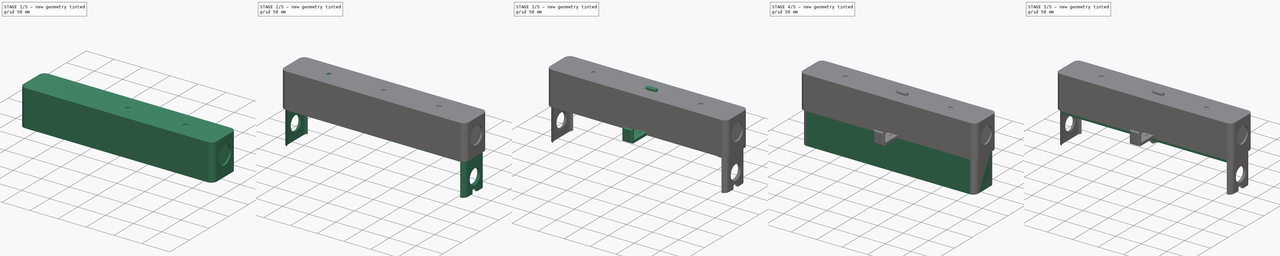
[diagram: build sequence overview — one tinted view per stage of 5, left to right]
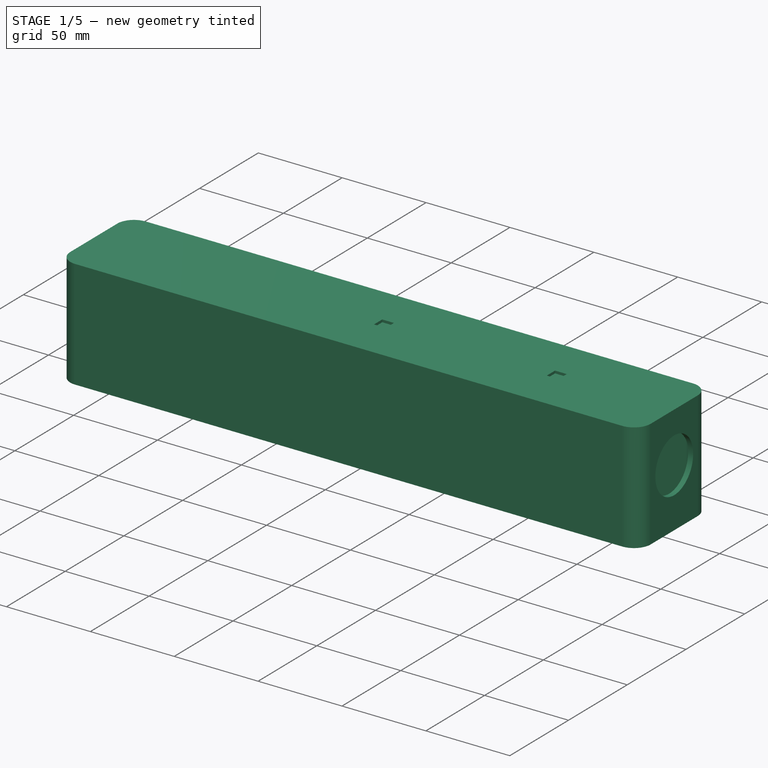
[diagram: stage 1 of 5 — iso view after this stage's code; geometry added in this stage tinted green]
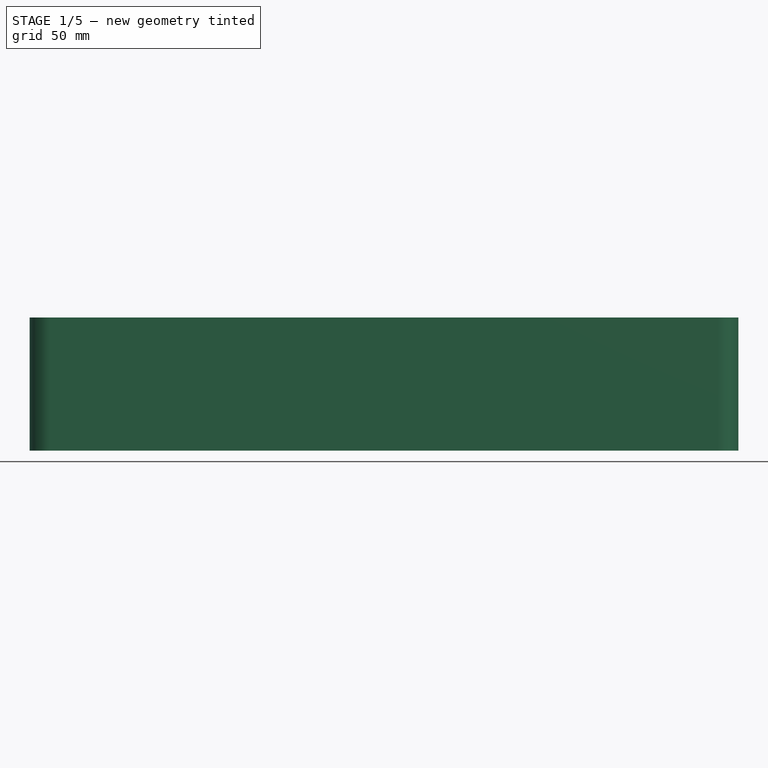
[diagram: stage 1 of 5 — front view after this stage's code; geometry added in this stage tinted green]
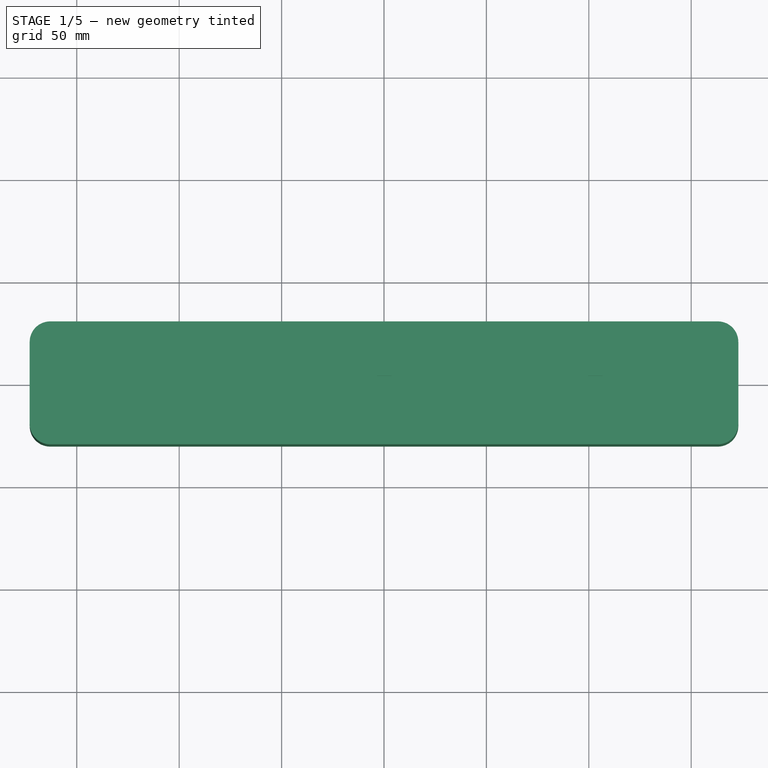
[diagram: stage 1 of 5 — top view after this stage's code; geometry added in this stage tinted green]
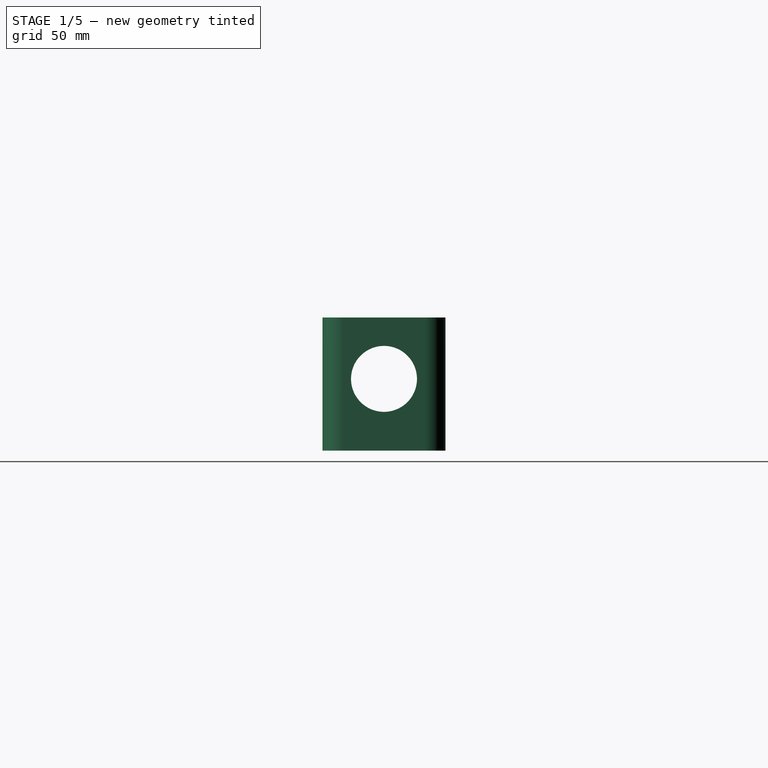
[diagram: stage 1 of 5 — right view after this stage's code; geometry added in this stage tinted green]
FCSTD DOCUMENT  (FreeCAD 1.0R39319 (Git))
Label: Folienabroller
License: All rights reserved
LicenseURL: http://en.wikipedia.org/wiki/All_rights_reserved
objects: Sketcher::SketchObject×34, PartDesign::Pad×18, PartDesign::Pocket×11, PartDesign::Body×8, PartDesign::Chamfer×8, PartDesign::LinearPattern×6, PartDesign::Fillet×6, PartDesign::Hole×3, Spreadsheet::Sheet×2, Part::FeaturePython×1
note: 227 computed .brp shape members not serialized (recipe doc carries the construction recipe); baked Part::Feature solids carry a one-line shape summary decoded from their .brp

FEATURE [Sketcher::SketchObject] Sketch016  label="Halter Deckel"
  ArcFitTolerance = 1e-06
  AttachmentSupport = -> [YZ_Plane002]
  FullyConstrained = true
  MakeInternals = false
  MapMode = 5
  Placement = pos=(0,0,0) rot=(0.57735,0.57735,0.57735;2.0944rad)
  expr: Constraints[10] = Spreadsheet.BODY_Y / 2 - 2
  expr: Constraints[11] = -2.2
  sketch-geometry (4):
    g0: LineSegment StartX=-28 StartY=7.2 StartZ=0 EndX=-28 EndY=2.2 EndZ=0
    g1: LineSegment StartX=-28 StartY=2.2 StartZ=0 EndX=-25 EndY=2.2 EndZ=0
    g2: LineSegment StartX=-25 StartY=2.2 StartZ=0 EndX=-25 EndY=7.2 EndZ=0
    g3: LineSegment StartX=-25 StartY=7.2 StartZ=0 EndX=-28 EndY=7.2 EndZ=0
  constraints (12):
    c: Coincident(g0,g1)
    c: Coincident(g1,g2)
    c: Coincident(g2,g3)
    c: Coincident(g3,g0)
    c: Vertical(g0)
    c: Vertical(g2)
    c: Horizontal(g1)
    c: Horizontal(g3)
    c: DistanceX(g3,g3) = 3
    c: DistanceY(g2,g2) = 5
    c: DistanceX(g0,g-1) = 28
    c: DistanceY(g1,g-1) = -2.2
FEATURE [Sketcher::SketchObject] Sketch017  label="Verstärkung"
  ArcFitTolerance = 1e-06
  AttachmentSupport = -> [YZ_Plane002]
  FullyConstrained = true
  MakeInternals = false
  MapMode = 5
  Placement = pos=(0,0,0) rot=(0.57735,0.57735,0.57735;2.0944rad)
  expr: .AttachmentOffset.Base.z = 0
  expr: Constraints[13] = Spreadsheet.BODY_Y - 2 - 2
  expr: Constraints[14] = Spreadsheet.BODY_Z - 2
  expr: Constraints[16] = Spreadsheet.BODY_Y - 2 - 2 - 2 - 2
  sketch-geometry (8):
    g0: LineSegment StartX=-28 StartY=63 StartZ=0 EndX=28 EndY=63 EndZ=0
    g1: LineSegment StartX=28 StartY=63 StartZ=0 EndX=28 EndY=10 EndZ=0
    g2: LineSegment StartX=28 StartY=10 StartZ=0 EndX=26 EndY=20 EndZ=0
    g3: LineSegment StartX=26 StartY=20 StartZ=0 EndX=26 EndY=59 EndZ=0
    g4: LineSegment StartX=26 StartY=59 StartZ=0 EndX=-26 EndY=59 EndZ=0
    g5: LineSegment StartX=-26 StartY=59 StartZ=0 EndX=-26 EndY=15 EndZ=0
    g6: LineSegment StartX=-26 StartY=15 StartZ=0 EndX=-28 EndY=2.2 EndZ=0
    g7: LineSegment StartX=-28 StartY=2.2 StartZ=0 EndX=-28 EndY=63 EndZ=0
  constraints (22):
    c: Coincident(g0,g1)
    c: Vertical(g1)
    c: Coincident(g1,g2)
    c: Coincident(g2,g3)
    c: Vertical(g3)
    c: Coincident(g3,g4)
    c: Coincident(g4,g5)
    c: Vertical(g5)
    c: Coincident(g5,g6)
    c: Coincident(g6,g7)
    c: Coincident(g7,g0)
    c: Vertical(g7)
    c: Symmetric(g0,g0,g-2)
    c: DistanceX(g0,g0) = 56
    c: DistanceY(g-1,g0) = 63
    c: Symmetric(g3,g4,g-2)
    c: DistanceX(g4,g4) = 52
    c: DistanceY(g-1,g6) = 2.2
    c: DistanceY(g-1,g1) = 10
    c: DistanceY(g-1,g5) = 15
    c: DistanceY(g-1,g2) = 20
    c: DistanceY(g3,g0) = 4
FEATURE [PartDesign::Pad] Pad006
  Direction = (0,0,1)
  Length = 65
  Length2 = 10
  Profile = -> Sketch007
  ReferenceAxis = -> Sketch007 [N_Axis]
  Refine = true
  Suppressed = false
  Type = 0
  expr: Length = Spreadsheet.BODY_Z
FEATURE [PartDesign::Pocket] Pocket
  BaseFeature = -> Pad006
  Direction = (0,0,-1)
  Length = 63
  Length2 = 5
  Profile = -> Sketch008
  ReferenceAxis = -> Sketch008 [N_Axis]
  Refine = true
  Reversed = true
  Suppressed = false
  Type = 0
  expr: Length = Spreadsheet.BODY_Z - 2
FEATURE [PartDesign::Pocket] Pocket005
  BaseFeature = -> Pocket
  Direction = (1,-1e-16,1e-16)
  Length = 5
  Length2 = 5
  Profile = -> Sketch009
  ReferenceAxis = -> Sketch009 [N_Axis]
  Refine = true
  Suppressed = false
  Type = 1
FEATURE [PartDesign::Pad] Pad009
  BaseFeature = -> Pocket005
  Direction = (1,0,0)
  Length = 20
  Length2 = 10
  Midplane = true
  Profile = -> Sketch017
  ReferenceAxis = -> Sketch017 [N_Axis]
  Refine = true
  Suppressed = false
  Type = 0
FEATURE [PartDesign::LinearPattern] LinearPattern
  BaseFeature = -> Pad009
  Direction = -> X_Axis002
  Length = 103
  Mode = 0
  Occurrences = 2
  Offset = 173
  Originals = -> [Pad009]
  Refine = true
  Reversed = true
  Suppressed = false
  TransformMode = 0
  expr: Length = Spreadsheet.BODY_X / 2 - 70
  expr: Offset = Spreadsheet.BODY_X / 2
FEATURE [PartDesign::LinearPattern] LinearPattern001
  BaseFeature = -> LinearPattern
  Direction = -> X_Axis002
  Length = 103
  Mode = 0
  Occurrences = 2
  Offset = 103
  Originals = -> [Pad009]
  Refine = true
  Suppressed = false
  TransformMode = 0
  expr: Length = Spreadsheet.BODY_X / 2 - 70
FEATURE [PartDesign::Pad] Pad010
  BaseFeature = -> LinearPattern001
  Direction = (1,0,0)
  Length = 150
  Length2 = 10
  Midplane = true
  Profile = -> Sketch016
  ReferenceAxis = -> Sketch016 [N_Axis]
  Refine = true
  Suppressed = false
  Type = 0
FEATURE [Sketcher::SketchObject] Sketch019
  ArcFitTolerance = 1e-06
  AttachmentSupport = -> [YZ_Plane002]
  FullyConstrained = true
  MakeInternals = false
  MapMode = 5
  Placement = pos=(0,0,0) rot=(0.57735,0.57735,0.57735;2.0944rad)
FEATURE [Sketcher::SketchObject] Sketch020  label="Nut Deckel"
  ArcFitTolerance = 1e-06
  AttachmentSupport = -> [Pad010]
  FullyConstrained = true
  MakeInternals = false
  MapMode = 5
  Placement = pos=(-173,0,0) rot=(0.57735,-0.57735,-0.57735;2.0944rad)
  expr: Constraints[12] = Spreadsheet.BODY_Z - 2 - 5 / 2
  sketch-geometry (5):
    g0: LineSegment StartX=-5 StartY=63 StartZ=0 EndX=-5 EndY=58 EndZ=0
    g1: LineSegment StartX=-5 StartY=58 StartZ=0 EndX=5 EndY=58 EndZ=0
    g2: LineSegment StartX=5 StartY=58 StartZ=0 EndX=5 EndY=63 EndZ=0
    g3: LineSegment StartX=5 StartY=63 StartZ=0 EndX=-5 EndY=63 EndZ=0
    g4: GeomPoint [constr] X=0 Y=60.5 Z=0
  constraints (13):
    c: Coincident(g0,g1)
    c: Coincident(g1,g2)
    c: Coincident(g2,g3)
    c: Coincident(g3,g0)
    c: Vertical(g0)
    c: Vertical(g2)
    c: Horizontal(g1)
    c: Horizontal(g3)
    c: Symmetric(g2,g0,g4)
    c: PointOnObject(g4,g-2)
    c: DistanceX(g3,g3) = 10
    c: DistanceY(g2,g2) = 5
    c: DistanceY(g-1,g4) = 60.5
FEATURE [PartDesign::Pad] Pad011
  BaseFeature = -> Pad010
  Direction = (-1,0,0)
  Length = 6
  Length2 = 10
  Profile = -> Sketch020
  ReferenceAxis = -> Sketch020 [N_Axis]
  Refine = true
  Reversed = true
  Suppressed = false
  Type = 0
FEATURE [PartDesign::Chamfer] Chamfer001
  Angle = 45
  Base = -> Pad011 [Edge100,Edge98,Edge111,Edge113,Edge136,Edge134,Edge141,Edge143,Edge130,Edge128,Edge106,Edge108]
  BaseFeature = -> Pad011
  ChamferType = 0
  FlipDirection = false
  Refine = true
  Size = 1.9
  Size2 = 1
  SupportTransform = false
  Suppressed = false
  UseAllEdges = false
FEATURE [Sketcher::SketchObject] Sketch021  label="Nut Halter"
  ArcFitTolerance = 1e-06
  AttachmentOffset = pos=(0,0,65) rot=(0,0,1;0rad)
  AttachmentSupport = -> [XY_Plane002]
  FullyConstrained = true
  MakeInternals = false
  MapMode = 5
  Placement = pos=(0,0,65) rot=(0,0,1;0rad)
  expr: .AttachmentOffset.Base.z = Spreadsheet.BODY_Z
  sketch-geometry (5):
    g0: LineSegment StartX=-3.5 StartY=3.5 StartZ=0 EndX=-3.5 EndY=-3.5 EndZ=0
    g1: LineSegment StartX=-3.5 StartY=-3.5 StartZ=0 EndX=3.5 EndY=-3.5 EndZ=0
    g2: LineSegment StartX=3.5 StartY=-3.5 StartZ=0 EndX=3.5 EndY=3.5 EndZ=0
    g3: LineSegment StartX=3.5 StartY=3.5 StartZ=0 EndX=-3.5 EndY=3.5 EndZ=0
    g4: GeomPoint [constr] X=0 Y=0 Z=0
  constraints (12):
    c: Coincident(g0,g1)
    c: Coincident(g1,g2)
    c: Coincident(g2,g3)
    c: Coincident(g3,g0)
    c: Vertical(g0)
    c: Vertical(g2)
    c: Horizontal(g1)
    c: Horizontal(g3)
    c: Symmetric(g2,g0,g4)
    c: Coincident(g4,g-1)
    c: DistanceX(g3,g3) = 7
    c: DistanceY(g2,g2) = 7
FEATURE [PartDesign::Pocket] Pocket007
  BaseFeature = -> Chamfer001
  Direction = (0,0,-1)
  Length = 1.5
  Length2 = 5
  Profile = -> Sketch021
  ReferenceAxis = -> Sketch021 [N_Axis]
  Refine = true
  Suppressed = false
  Type = 0
FEATURE [PartDesign::LinearPattern] LinearPattern002
  BaseFeature = -> Pocket007
  Direction = -> Sketch021 [H_Axis]
  Length = 103
  Mode = 0
  Occurrences = 2
  Offset = 103
  Originals = -> [Pocket007]
  Refine = true
  Suppressed = false
  TransformMode = 0
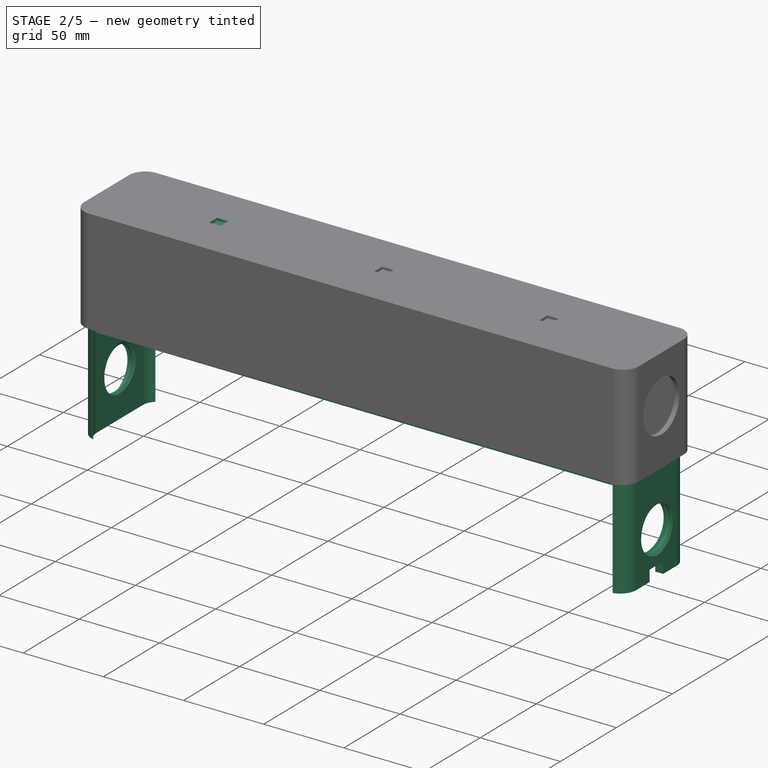
[diagram: stage 2 of 5 — iso view after this stage's code; geometry added in this stage tinted green]
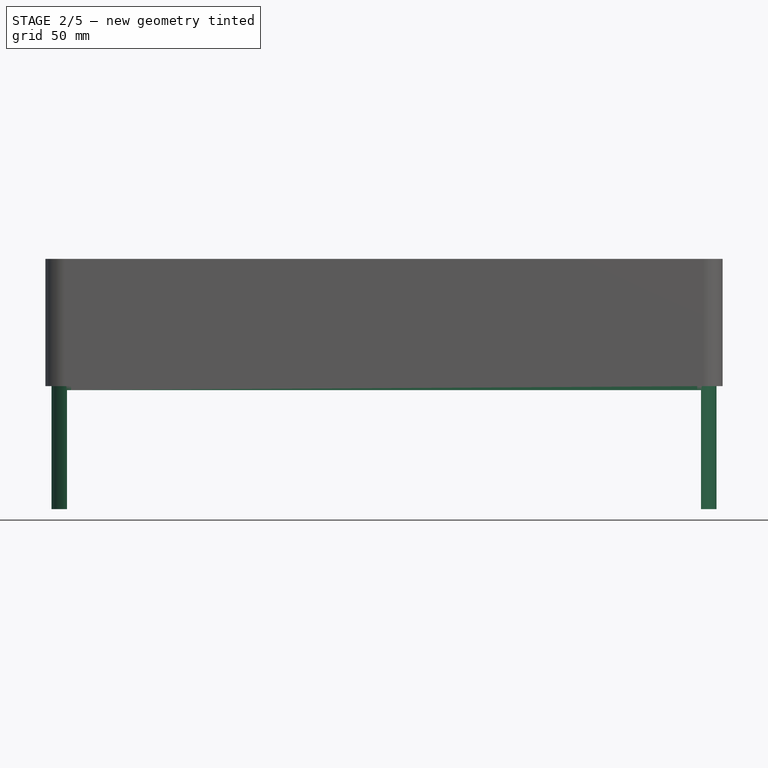
[diagram: stage 2 of 5 — front view after this stage's code; geometry added in this stage tinted green]
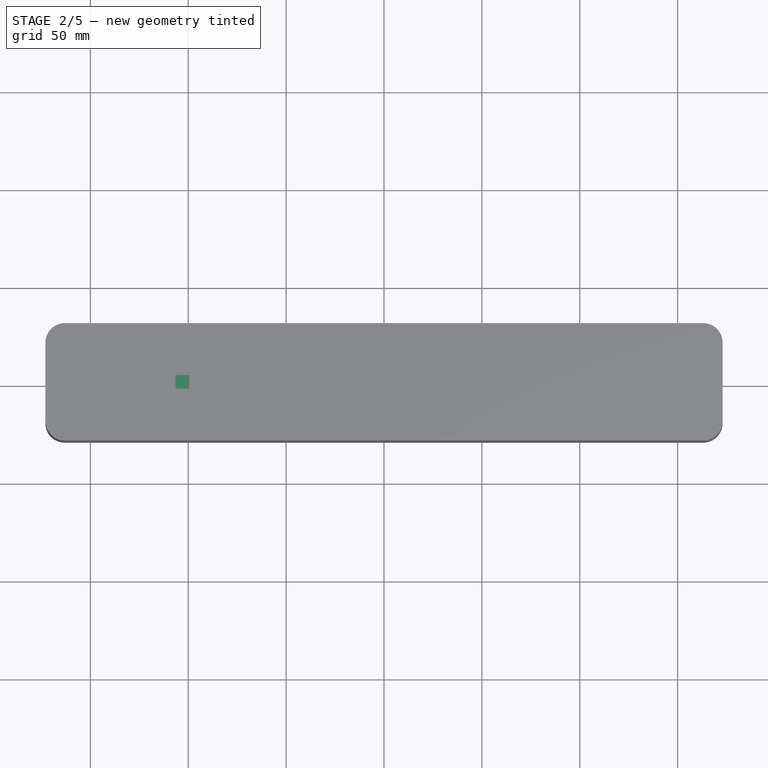
[diagram: stage 2 of 5 — top view after this stage's code; geometry added in this stage tinted green]
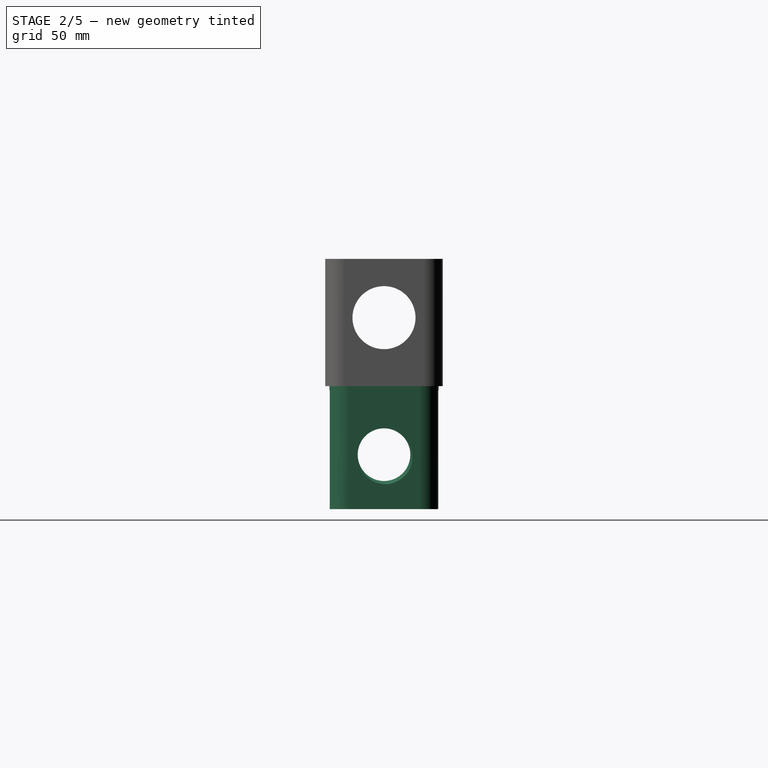
[diagram: stage 2 of 5 — right view after this stage's code; geometry added in this stage tinted green]
FEATURE [PartDesign::LinearPattern] LinearPattern003
  BaseFeature = -> LinearPattern002
  Direction = -> Sketch021 [H_Axis]
  Length = 103
  Mode = 1
  Occurrences = 2
  Offset = 103
  Originals = -> [Pocket007]
  Refine = true
  Reversed = true
  Suppressed = false
  TransformMode = 0
FEATURE [PartDesign::Chamfer] Chamfer003
  Angle = 45
  Base = -> LinearPattern003 [Edge142,Edge139,Edge145]
  BaseFeature = -> LinearPattern003
  ChamferType = 0
  FlipDirection = false
  Refine = true
  Size = 2.2
  Size2 = 1
  SupportTransform = false
  Suppressed = false
  UseAllEdges = false
FEATURE [PartDesign::Body] Body006  label="Alufoliecutter"
  AllowCompound = false
  Group = -> [Sketch026,Pad015,Sketch027,Pad016,LinearPattern004,LinearPattern005]
  Origin = -> Origin006
  Tip = -> LinearPattern005
FEATURE [Sketcher::SketchObject] Sketch028
  ArcFitTolerance = 1e-06
  AttachmentSupport = -> [XY_Plane007]
  FullyConstrained = true
  MakeInternals = false
  MapMode = 5
  expr: Constraints[24] = Spreadsheet001.BODY_ROUND
  expr: Constraints[25] = Spreadsheet001.BODY_ROUND
  expr: Constraints[26] = Spreadsheet001.BODY_ROUND
  expr: Constraints[27] = Spreadsheet001.BODY_ROUND
  expr: Constraints[6] = Spreadsheet001.BODY_X - 3 - 3 - 0.1 - 0.1
  expr: Constraints[7] = Spreadsheet001.BODY_Y - 2 - 2 - 0.1 - 0.1
  sketch-geometry (13):
    g0: LineSegment StartX=-169.9 StartY=17.9 StartZ=0 EndX=-169.9 EndY=-17.9 EndZ=0
    g1: LineSegment StartX=-159.9 StartY=-27.9 StartZ=0 EndX=159.9 EndY=-27.9 EndZ=0
    g2: LineSegment StartX=169.9 StartY=-17.9 StartZ=0 EndX=169.9 EndY=17.9 EndZ=0
    g3: LineSegment StartX=159.9 StartY=27.9 StartZ=0 EndX=-159.9 EndY=27.9 EndZ=0
    g4: GeomPoint [constr] X=0 Y=0 Z=0
    g5: ArcOfCircle CenterX=159.9 CenterY=17.9 CenterZ=0 NormalX=0 NormalY=0 NormalZ=1 AngleXU=0 Radius=10 StartAngle=2.8629e-12 EndAngle=1.5708
    g6: GeomPoint [constr] X=169.9 Y=27.9 Z=0
    g7: ArcOfCircle CenterX=159.9 CenterY=-17.9 CenterZ=0 NormalX=0 NormalY=0 NormalZ=1 AngleXU=0 Radius=10 StartAngle=4.71239 EndAngle=6.28319
    g8: GeomPoint [constr] X=169.9 Y=-27.9 Z=0
    g9: ArcOfCircle CenterX=-159.9 CenterY=-17.9 CenterZ=0 NormalX=0 NormalY=0 NormalZ=1 AngleXU=0 Radius=10 StartAngle=3.14159 EndAngle=4.71239
    g10: GeomPoint [constr] X=-169.9 Y=-27.9 Z=0
    g11: ArcOfCircle CenterX=-159.9 CenterY=17.9 CenterZ=0 NormalX=0 NormalY=0 NormalZ=1 AngleXU=0 Radius=10 StartAngle=1.5708 EndAngle=3.14159
    g12: GeomPoint [constr] X=-169.9 Y=27.9 Z=0
  constraints (28):
    c: Vertical(g0)
    c: Vertical(g2)
    c: Horizontal(g1)
    c: Horizontal(g3)
    c: Symmetric(g8,g12,g4)
    c: Coincident(g4,g-1)
    c: DistanceX(g12,g6) = 339.8
    c: DistanceY(g8,g6) = 55.8
    c: PointOnObject(g6,g2)
    c: PointOnObject(g6,g3)
    c: Tangent(g2,g5) = -1.5708
    c: Tangent(g3,g5) = -1.5708
    c: PointOnObject(g8,g1)
    c: PointOnObject(g8,g2)
    c: Tangent(g1,g7) = -1.5708
    c: Tangent(g2,g7) = -1.5708
    c: PointOnObject(g10,g0)
    c: PointOnObject(g10,g1)
    c: Tangent(g0,g9) = -1.5708
    c: Tangent(g1,g9) = -1.5708
    c: PointOnObject(g12,g0)
    c: PointOnObject(g12,g3)
    c: Tangent(g0,g11) = -1.5708
    c: Tangent(g3,g11) = -1.5708
    c: DistanceX(g0,g11) = 10
    c: DistanceX(g5,g2) = 10
    c: DistanceX(g7,g2) = 10
    c: DistanceX(g0,g9) = 10
FEATURE [PartDesign::Pad] Pad017
  Direction = (0,0,1)
  Length = 62.8
  Length2 = 10
  Profile = -> Sketch028
  ReferenceAxis = -> Sketch028 [N_Axis]
  Refine = true
  Reversed = true
  Suppressed = false
  Type = 0
  expr: Length = Spreadsheet001.BODY_Z - 2 - 0.2
FEATURE [Sketcher::SketchObject] Sketch030  label="Auschnitt deckel unten001"
  ArcFitTolerance = 1e-06
  AttachmentOffset = pos=(0,0,-2) rot=(0,0,1;0rad)
  AttachmentSupport = -> [XY_Plane007]
  FullyConstrained = true
  MakeInternals = false
  MapMode = 5
  Placement = pos=(0,0,-2) rot=(0,0,1;0rad)
  expr: Constraints[24] = Spreadsheet001.BODY_ROUND
  expr: Constraints[25] = Spreadsheet001.BODY_ROUND
  expr: Constraints[26] = Spreadsheet001.BODY_ROUND
  expr: Constraints[27] = Spreadsheet001.BODY_ROUND
  expr: Constraints[7] = Spreadsheet001.BODY_Z - 2 - 2
  sketch-geometry (13):
    g0: LineSegment StartX=-165 StartY=20.5 StartZ=0 EndX=-165 EndY=-20.5 EndZ=0
    g1: LineSegment StartX=-155 StartY=-30.5 StartZ=0 EndX=155 EndY=-30.5 EndZ=0
    g2: LineSegment StartX=165 StartY=-20.5 StartZ=0 EndX=165 EndY=20.5 EndZ=0
    g3: LineSegment StartX=155 StartY=30.5 StartZ=0 EndX=-155 EndY=30.5 EndZ=0
    g4: GeomPoint [constr] X=0 Y=0 Z=0
    g5: ArcOfCircle CenterX=155 CenterY=20.5 CenterZ=0 NormalX=0 NormalY=0 NormalZ=1 AngleXU=0 Radius=10 StartAngle=2.8411e-12 EndAngle=1.5708
    g6: GeomPoint [constr] X=165 Y=30.5 Z=0
    g7: ArcOfCircle CenterX=155 CenterY=-20.5 CenterZ=0 NormalX=0 NormalY=0 NormalZ=1 AngleXU=0 Radius=10 StartAngle=4.71239 EndAngle=6.28319
    g8: GeomPoint [constr] X=165 Y=-30.5 Z=0
    g9: ArcOfCircle CenterX=-155 CenterY=-20.5 CenterZ=0 NormalX=0 NormalY=0 NormalZ=1 AngleXU=0 Radius=10 StartAngle=3.14159 EndAngle=4.71239
    g10: GeomPoint [constr] X=-165 Y=-30.5 Z=0
    g11: ArcOfCircle CenterX=-155 CenterY=20.5 CenterZ=0 NormalX=0 NormalY=0 NormalZ=1 AngleXU=0 Radius=10 StartAngle=1.5708 EndAngle=3.14159
    g12: GeomPoint [constr] X=-165 Y=30.5 Z=0
  constraints (28):
    c: Vertical(g0)
    c: Vertical(g2)
    c: Horizontal(g1)
    c: Horizontal(g3)
    c: Symmetric(g8,g12,g4)
    c: Coincident(g4,g-1)
    c: DistanceX(g12,g6) = 330
    c: DistanceY(g8,g6) = 61
    c: PointOnObject(g6,g2)
    c: PointOnObject(g6,g3)
    c: Tangent(g2,g5) = -1.5708
    c: Tangent(g3,g5) = -1.5708
    c: PointOnObject(g8,g1)
    c: PointOnObject(g8,g2)
    c: Tangent(g1,g7) = -1.5708
    c: Tangent(g2,g7) = -1.5708
    c: PointOnObject(g10,g0)
    c: PointOnObject(g10,g1)
    c: Tangent(g0,g9) = -1.5708
    c: Tangent(g1,g9) = -1.5708
    c: PointOnObject(g12,g0)
    c: PointOnObject(g12,g3)
    c: Tangent(g0,g11) = -1.5708
    c: Tangent(g3,g11) = -1.5708
    c: DistanceX(g0,g11) = 10
    c: DistanceX(g0,g9) = 10
    c: DistanceX(g7,g2) = 10
    c: DistanceX(g5,g2) = 10
FEATURE [PartDesign::Pocket] Pocket009
  BaseFeature = -> Pad017
  Direction = (0,0,-1)
  Length = 5
  Length2 = 5
  Profile = -> Sketch030
  ReferenceAxis = -> Sketch030 [N_Axis]
  Refine = true
  Suppressed = false
  Type = 1
FEATURE [Sketcher::SketchObject] Sketch031
  ArcFitTolerance = 1e-06
  AttachmentSupport = -> [Pocket009]
  FullyConstrained = true
  MakeInternals = false
  MapMode = 5
  Placement = pos=(-169.9,0,0) rot=(0.57735,-0.57735,-0.57735;2.0944rad)
  expr: Constraints[2] = Spreadsheet001.BODY_Z - Spreadsheet001.HOLE_BODY_HANDRAD
  sketch-geometry (1):
    g0: Circle CenterX=0 CenterY=-35 CenterZ=0 NormalX=0 NormalY=0 NormalZ=1 AngleXU=0 Radius=15
  constraints (3):
    c: PointOnObject(g0,g-2)
    c: Diameter(g0) = 30
    c: DistanceY(g0,g-1) = 35
FEATURE [PartDesign::Hole] Hole002
  BaseFeature = -> Pocket009
  CustomThreadClearance = 0.4
  Depth = 356
  DepthType = 0
  Diameter = 26.9
  DrillForDepth = false
  DrillPoint = 1
  DrillPointAngle = 118
  HoleCutCountersinkAngle = 90
  HoleCutCustomValues = false
  HoleCutDepth = 0
  HoleCutDiameter = 0
  HoleCutType = 0
  ModelThread = true
  Profile = -> Sketch031
  Refine = true
  Suppressed = false
  Tapered = false
  TaperedAngle = 90
  ThreadClass = 0
  ThreadDepth = 356
  ThreadDepthType = 0
  ThreadDirection = 0
  ThreadFit = 0
  ThreadSize = 28
  ThreadType = 1
  Threaded = true
  UseCustomThreadClearance = true
  expr: Depth = Spreadsheet001.BODY_X + 10
FEATURE [Sketcher::SketchObject] Sketch033  label="Ausschnitt Folie nach oben001"
  ArcFitTolerance = 1e-06
  AttachmentSupport = -> [XY_Plane007]
  FullyConstrained = true
  MakeInternals = false
  MapMode = 5
  expr: Constraints[10] = Spreadsheet001.BODY_Y / 2
  sketch-geometry (5):
    g0: LineSegment StartX=-155 StartY=34 StartZ=0 EndX=-155 EndY=26 EndZ=0
    g1: LineSegment StartX=-155 StartY=26 StartZ=0 EndX=155 EndY=26 EndZ=0
    g2: LineSegment StartX=155 StartY=26 StartZ=0 EndX=155 EndY=34 EndZ=0
    g3: LineSegment StartX=155 StartY=34 StartZ=0 EndX=-155 EndY=34 EndZ=0
    g4: GeomPoint [constr] X=0 Y=30 Z=0
  constraints (13):
    c: Coincident(g0,g1)
    c: Coincident(g1,g2)
    c: Coincident(g2,g3)
    c: Coincident(g3,g0)
    c: Vertical(g0)
    c: Vertical(g2)
    c: Horizontal(g1)
    c: Horizontal(g3)
    c: Symmetric(g2,g0,g4)
    c: PointOnObject(g4,g-2)
    c: DistanceY(g-1,g4) = 30
    c: DistanceX(g3,g3) = 310
    c: DistanceY(g0,g0) = 8
FEATURE [PartDesign::Pocket] Pocket010
  BaseFeature = -> Hole002
  Direction = (0,0,-1)
  Length = 5
  Length2 = 5
  Profile = -> Sketch033
  ReferenceAxis = -> Sketch033 [N_Axis]
  Refine = true
  Suppressed = false
  Type = 1
FEATURE [Sketcher::SketchObject] Sketch034  label="Nut001"
  ArcFitTolerance = 1e-06
  AttachmentOffset = pos=(0,0,173) rot=(0,0,1;0rad)
  AttachmentSupport = -> [YZ_Plane007]
  FullyConstrained = true
  MakeInternals = false
  MapMode = 5
  Placement = pos=(173,0,0) rot=(0.57735,0.57735,0.57735;2.0944rad)
  expr: .AttachmentOffset.Base.z = Spreadsheet001.BODY_X / 2
  expr: Constraints[12] = Spreadsheet001.BODY_Z - 0.2 - 7 / 2 - 2
  sketch-geometry (5):
    g0: LineSegment StartX=-6 StartY=-55.8 StartZ=0 EndX=-6 EndY=-62.8 EndZ=0
    g1: LineSegment StartX=-6 StartY=-62.8 StartZ=0 EndX=6 EndY=-62.8 EndZ=0
    g2: LineSegment StartX=6 StartY=-62.8 StartZ=0 EndX=6 EndY=-55.8 EndZ=0
    g3: LineSegment StartX=6 StartY=-55.8 StartZ=0 EndX=-6 EndY=-55.8 EndZ=0
    g4: GeomPoint [constr] X=0 Y=-59.3 Z=0
  constraints (13):
    c: Coincident(g0,g1)
    c: Coincident(g1,g2)
    c: Coincident(g2,g3)
    c: Coincident(g3,g0)
    c: Vertical(g0)
    c: Vertical(g2)
    c: Horizontal(g1)
    c: Horizontal(g3)
    c: Symmetric(g2,g0,g4)
    c: PointOnObject(g4,g-2)
    c: DistanceX(g3,g3) = 12
    c: DistanceY(g2,g2) = 7
    c: DistanceY(g4,g-1) = 59.3
FEATURE [PartDesign::Pocket] Pocket011
  BaseFeature = -> Pocket010
  Direction = (-1,0,0)
  Length = 8
  Length2 = 5
  Profile = -> Sketch034
  ReferenceAxis = -> Sketch034 [N_Axis]
  Refine = true
  Suppressed = false
  Type = 0
FEATURE [PartDesign::Fillet] Fillet004
  Base = -> Pocket011 [Edge17,Edge46]
  BaseFeature = -> Pocket011
  Radius = 0.99
  Refine = true
  SupportTransform = false
  Suppressed = false
  UseAllEdges = false
FEATURE [PartDesign::Fillet] Fillet005
  Base = -> Fillet004 [Edge19,Edge2,Edge28,Edge7]
  BaseFeature = -> Fillet004
  Radius = 0.99
  Refine = true
  SupportTransform = false
  Suppressed = false
  UseAllEdges = false
FEATURE [PartDesign::Body] Body007  label="Deckel Alufolie"
  AllowCompound = false
  Group = -> [Sketch028,Pad017,Sketch030,Pocket009,Sketch031,Hole002,Sketch033,Pocket010,Sketch034,Pocket011,Fillet004,Fillet005,Sketch036,Pocket012]
  Origin = -> Origin007
  Tip = -> Pocket012
FEATURE [PartDesign::Chamfer] Chamfer008
  Angle = 45
  Base = -> Chamfer003 [Edge89,Edge102,Edge52,Edge41,Edge112,Edge125]
  BaseFeature = -> Chamfer003
  ChamferType = 0
  FlipDirection = false
  Refine = true
  Size = 3.9
  Size2 = 1
  SupportTransform = false
  Suppressed = false
  UseAllEdges = false
FEATURE [PartDesign::Body] Body002  label="Gehäuse"
  AllowCompound = false
  Group = -> [Sketch007,Pad006,Sketch008,Sketch009,Sketch016,Sketch017,Pocket,Pocket005,Pad009,LinearPattern,LinearPattern001,Pad010,Sketch019,Sketch020,Pad011,Chamfer001,Sketch021,Pocket007,LinearPattern002,LinearPattern003,Chamfer003,Chamfer008]
  Origin = -> Origin002
  Placement = pos=(0,0,-60) rot=(0,0,1;0rad)
  Tip = -> Chamfer008
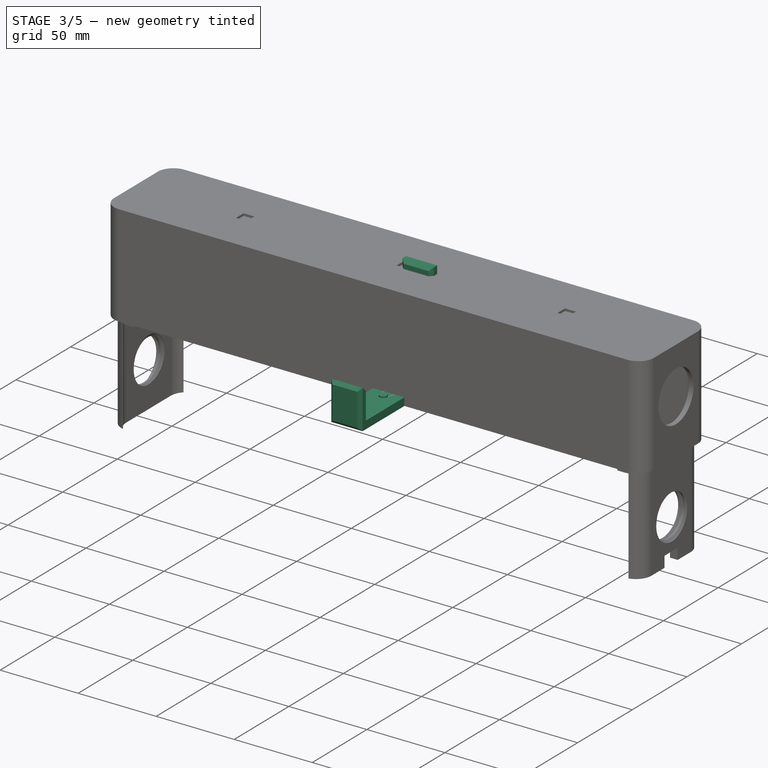
[diagram: stage 3 of 5 — iso view after this stage's code; geometry added in this stage tinted green]
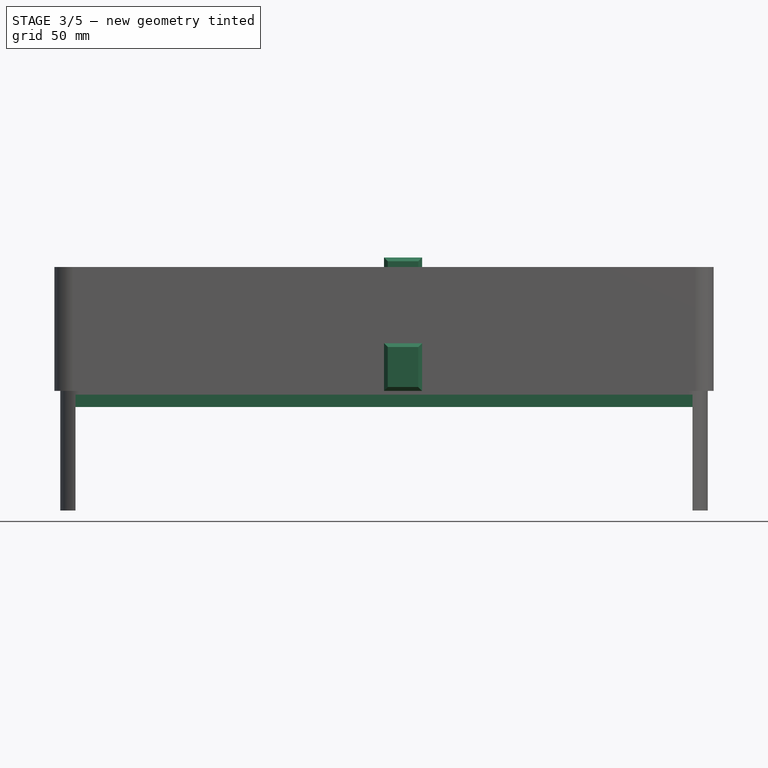
[diagram: stage 3 of 5 — front view after this stage's code; geometry added in this stage tinted green]
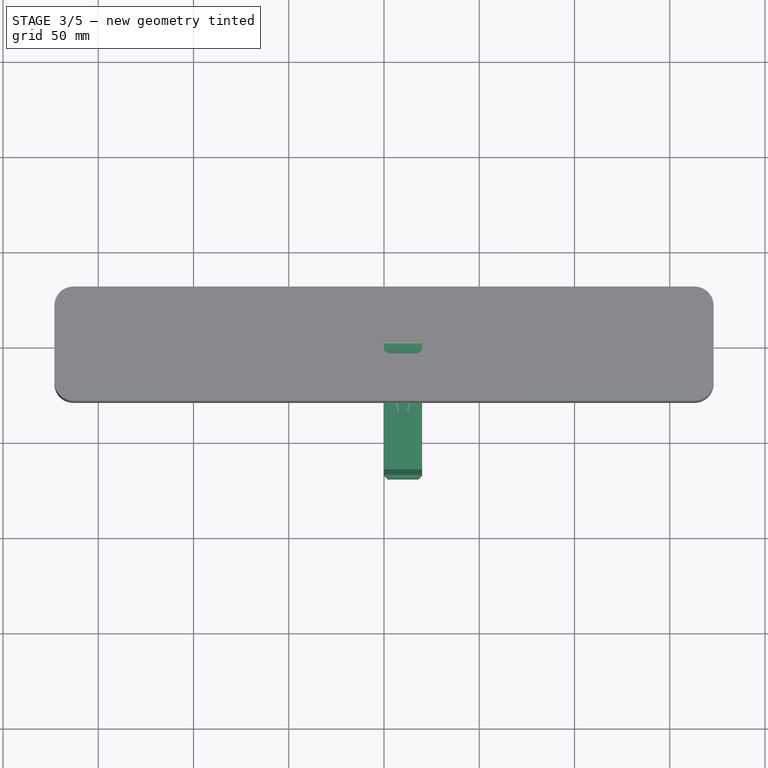
[diagram: stage 3 of 5 — top view after this stage's code; geometry added in this stage tinted green]
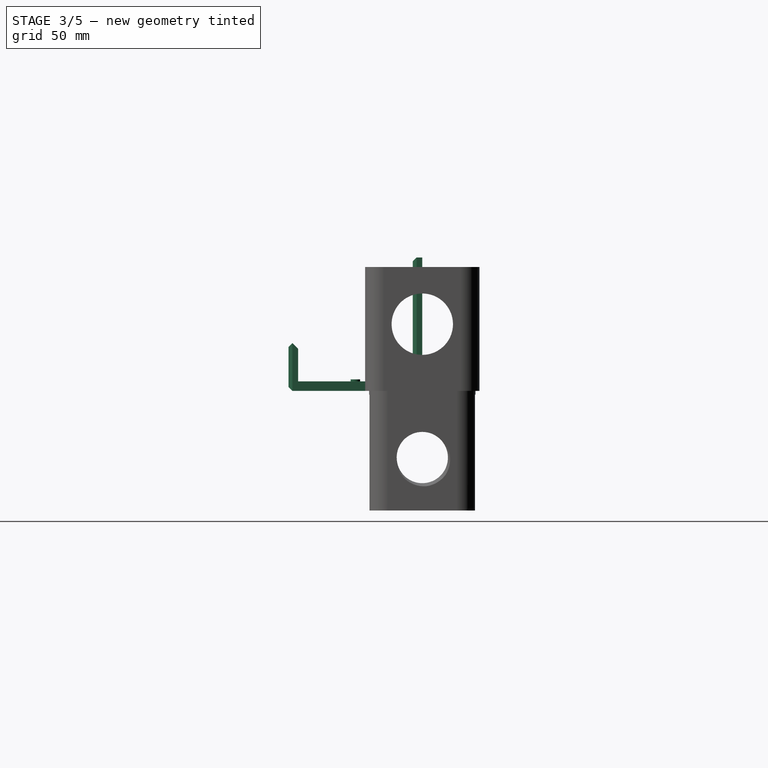
[diagram: stage 3 of 5 — right view after this stage's code; geometry added in this stage tinted green]
FEATURE [PartDesign::Body] Body001  label="Schraube"
  AllowCompound = false
  Group = -> [Sketch002,Pad001,Sketch003,Pad002,Sketch004,Pad003,Sketch005,Pad004,Sketch006,Pad005,Chamfer,Fillet002,Fillet003]
  Origin = -> Origin001
  Tip = -> Fillet003
FEATURE [Sketcher::SketchObject] Sketch023
  ArcFitTolerance = 1e-06
  AttachmentSupport = -> [YZ_Plane004]
  FullyConstrained = true
  MakeInternals = false
  MapMode = 5
  Placement = pos=(0,0,0) rot=(0.57735,0.57735,0.57735;2.0944rad)
  expr: Constraints[17] = Spreadsheet.BODY_Y + 0.2
  expr: Constraints[19] = Spreadsheet.BODY_Z
  sketch-geometry (8):
    g0: LineSegment StartX=0 StartY=0 StartZ=0 EndX=0 EndY=70 EndZ=0
    g1: LineSegment StartX=0 StartY=70 StartZ=0 EndX=-5 EndY=70 EndZ=0
    g2: LineSegment StartX=-5 StartY=70 StartZ=0 EndX=-5 EndY=5 EndZ=0
    g3: LineSegment StartX=-65.2 StartY=5 StartZ=0 EndX=-65.2 EndY=25 EndZ=0
    g4: LineSegment StartX=-65.2 StartY=25 StartZ=0 EndX=-70.2 EndY=25 EndZ=0
    g5: LineSegment StartX=-70.2 StartY=25 StartZ=0 EndX=-70.2 EndY=0 EndZ=0
    g6: LineSegment StartX=-70.2 StartY=0 StartZ=0 EndX=0 EndY=0 EndZ=0
    g7: LineSegment StartX=-65.2 StartY=5 StartZ=0 EndX=-5 EndY=5 EndZ=0
  constraints (23):
    c: Coincident(g-1,g0)
    c: PointOnObject(g0,g-2)
    c: Coincident(g0,g1)
    c: Horizontal(g1)
    c: Coincident(g1,g2)
    c: Vertical(g2)
    c: Vertical(g3)
    c: Coincident(g3,g4)
    c: Horizontal(g4)
    c: Coincident(g4,g5)
    c: PointOnObject(g5,g-1)
    c: Vertical(g5)
    c: Coincident(g5,g6)
    c: Coincident(g6,g0)
    c: Coincident(g3,g7)
    c: Horizontal(g7)
    c: Coincident(g7,g2)
    c: DistanceX(g7,g7) = 60.2
    c: DistanceX(g4,g4) = 5
    c: DistanceY(g2,g2) = 65
    c: DistanceX(g1,g1) = 5
    c: DistanceY(g3,g3) = 20
    c: DistanceY(g0,g2) = 5
FEATURE [PartDesign::Pad] Pad012
  Direction = (1,0,0)
  Length = 20
  Length2 = 10
  Placement = pos=(0,0,0) rot=(1,1,1;2.0944rad)
  Profile = -> Sketch023
  ReferenceAxis = -> Sketch023 [N_Axis]
  Refine = true
  Suppressed = false
  Type = 0
FEATURE [Sketcher::SketchObject] Sketch024
  ArcFitTolerance = 1e-06
  AttachmentSupport = -> [Pad012]
  FullyConstrained = true
  MakeInternals = false
  MapMode = 5
  Placement = pos=(0,1.1e-15,5) rot=(0,0,-1;1.5708rad)
  expr: Constraints[0] = 20 / 2
  expr: Constraints[1] = (Spreadsheet.BODY_Y + 0.2) / 2 + 5
  sketch-geometry (1):
    g0: Circle CenterX=35.1 CenterY=10 CenterZ=0 NormalX=0 NormalY=0 NormalZ=1 AngleXU=0 Radius=2.5
  constraints (3):
    c: DistanceY(g-1,g0) = 10
    c: DistanceX(g-1,g0) = 35.1
    c: Diameter(g0) = 5
FEATURE [PartDesign::Pad] Pad013
  BaseFeature = -> Pad012
  Direction = (0,0,1)
  Length = 1
  Length2 = 10
  Placement = pos=(0,0,0) rot=(1,1,1;2.0944rad)
  Profile = -> Sketch024
  ReferenceAxis = -> Sketch024 [N_Axis]
  Refine = true
  Suppressed = false
  Type = 0
FEATURE [Sketcher::SketchObject] Sketch025
  ArcFitTolerance = 1e-06
  AttachmentSupport = -> [XY_Plane005]
  FullyConstrained = true
  MakeInternals = false
  MapMode = 5
  sketch-geometry (5):
    g0: LineSegment StartX=-25 StartY=16 StartZ=0 EndX=-25 EndY=-16 EndZ=0
    g1: LineSegment StartX=-25 StartY=-16 StartZ=0 EndX=25 EndY=-16 EndZ=0
    g2: LineSegment StartX=25 StartY=-16 StartZ=0 EndX=25 EndY=16 EndZ=0
    g3: LineSegment StartX=25 StartY=16 StartZ=0 EndX=-25 EndY=16 EndZ=0
    g4: GeomPoint [constr] X=0 Y=0 Z=0
  constraints (12):
    c: Coincident(g0,g1)
    c: Coincident(g1,g2)
    c: Coincident(g2,g3)
    c: Coincident(g3,g0)
    c: Vertical(g0)
    c: Vertical(g2)
    c: Horizontal(g1)
    c: Horizontal(g3)
    c: Symmetric(g2,g0,g4)
    c: Coincident(g4,g-1)
    c: DistanceX(g3,g3) = 50
    c: DistanceY(g2,g2) = 32
FEATURE [PartDesign::Pad] Pad014
  Direction = (0,0,1)
  Length = 1.7
  Length2 = 10
  Profile = -> Sketch025
  ReferenceAxis = -> Sketch025 [N_Axis]
  Refine = true
  Suppressed = false
  Type = 0
FEATURE [PartDesign::Body] Body005  label="Klebenasen-Deckel"
  AllowCompound = false
  Group = -> [Sketch025,Pad014,Chamfer004]
  Origin = -> Origin005
  Tip = -> Chamfer004
FEATURE [PartDesign::Chamfer] Chamfer005
  Angle = 45
  Base = -> Pad013 [Edge9,Edge17,Edge12,Edge25]
  BaseFeature = -> Pad013
  ChamferType = 0
  FlipDirection = false
  Placement = pos=(0,0,0) rot=(1,1,1;2.0944rad)
  Refine = true
  Size = 2
  Size2 = 1
  SupportTransform = false
  Suppressed = false
  UseAllEdges = false
FEATURE [PartDesign::Chamfer] Chamfer006
  Angle = 45
  Base = -> Chamfer005 [Edge21,Edge30,Edge10]
  BaseFeature = -> Chamfer005
  ChamferType = 0
  FlipDirection = false
  Placement = pos=(0,0,0) rot=(1,1,1;2.0944rad)
  Refine = true
  Size = 2
  Size2 = 1
  SupportTransform = false
  Suppressed = false
  UseAllEdges = false
FEATURE [PartDesign::Chamfer] Chamfer007
  Angle = 45
  Base = -> Chamfer006 [Edge29]
  BaseFeature = -> Chamfer006
  ChamferType = 0
  FlipDirection = false
  Placement = pos=(0,0,0) rot=(1,1,1;2.0944rad)
  Refine = true
  Size = 2.9
  Size2 = 1
  SupportTransform = false
  Suppressed = false
  UseAllEdges = false
FEATURE [PartDesign::Body] Body004  label="Halter"
  AllowCompound = false
  Group = -> [Sketch023,Pad012,Sketch024,Pad013,Chamfer005,Chamfer006,Chamfer007]
  Origin = -> Origin004
  Tip = -> Chamfer007
FEATURE [Sketcher::SketchObject] Sketch026  label="Cutter"
  ArcFitTolerance = 1e-06
  AttachmentSupport = -> [XZ_Plane006]
  FullyConstrained = true
  MakeInternals = false
  MapMode = 5
  Placement = pos=(0,0,0) rot=(1,0,0;1.5708rad)
  sketch-geometry (4):
    g0: LineSegment StartX=0 StartY=1.5 StartZ=0 EndX=-1.29904 EndY=-0.75 EndZ=0
    g1: LineSegment StartX=-1.29904 StartY=-0.75 StartZ=0 EndX=1.29904 EndY=-0.75 EndZ=0
    g2: LineSegment StartX=1.29904 StartY=-0.75 StartZ=0 EndX=0 EndY=1.5 EndZ=0
    g3: Circle [constr] CenterX=0 CenterY=0 CenterZ=0 NormalX=0 NormalY=0 NormalZ=1 AngleXU=0 Radius=1.5
  constraints (11):
    c: Coincident(g0,g1)
    c: Coincident(g1,g2)
    c: Coincident(g2,g0)
    c: Equal(g0,g1)
    c: Equal(g0,g2)
    c: PointOnObject(g0,g3)
    c: PointOnObject(g1,g3)
    c: PointOnObject(g2,g3)
    c: Coincident(g3,g-1)
    c: PointOnObject(g2,g-2)
    c: DistanceY(g3,g0) = 1.5
FEATURE [PartDesign::Pad] Pad015
  Direction = (0,-1,2e-16)
  Length = 1
  Length2 = 10
  Placement = pos=(0,0,0) rot=(1,0,0;1.5708rad)
  Profile = -> Sketch026
  ReferenceAxis = -> Sketch026 [N_Axis]
  Refine = true
  Suppressed = false
  Type = 0
FEATURE [Sketcher::SketchObject] Sketch027
  ArcFitTolerance = 1e-06
  AttachmentSupport = -> [XZ_Plane006]
  FullyConstrained = true
  MakeInternals = false
  MapMode = 5
  Placement = pos=(0,0,0) rot=(1,0,0;1.5708rad)
  expr: Constraints[10] = 330 - 0.3
  sketch-geometry (5):
    g0: LineSegment StartX=-164.85 StartY=-0.5 StartZ=0 EndX=-164.85 EndY=-8.5 EndZ=0
    g1: LineSegment StartX=-164.85 StartY=-8.5 StartZ=0 EndX=164.85 EndY=-8.5 EndZ=0
    g2: LineSegment StartX=164.85 StartY=-8.5 StartZ=0 EndX=164.85 EndY=-0.5 EndZ=0
    g3: LineSegment StartX=164.85 StartY=-0.5 StartZ=0 EndX=-164.85 EndY=-0.5 EndZ=0
    g4: GeomPoint [constr] X=0 Y=-4.5 Z=0
  constraints (13):
    c: Coincident(g0,g1)
    c: Coincident(g1,g2)
    c: Coincident(g2,g3)
    c: Coincident(g3,g0)
    c: Vertical(g0)
    c: Vertical(g2)
    c: Horizontal(g1)
    c: Horizontal(g3)
    c: Symmetric(g2,g0,g4)
    c: PointOnObject(g4,g-2)
    c: DistanceX(g3,g3) = 329.7
    c: DistanceY(g2,g2) = 8
    c: DistanceY(g4,g-1) = 4.5
FEATURE [PartDesign::Pad] Pad016
  BaseFeature = -> Pad015
  Direction = (0,-1,2e-16)
  Length = 9.3
  Length2 = 10
  Placement = pos=(0,0,0) rot=(1,0,0;1.5708rad)
  Profile = -> Sketch027
  ReferenceAxis = -> Sketch027 [N_Axis]
  Refine = true
  Suppressed = false
  Type = 0
  expr: Length = 9.5 - 0.2
FEATURE [PartDesign::LinearPattern] LinearPattern004
  BaseFeature = -> Pad016
  Direction = -> Sketch026 [H_Axis]
  Length = 162
  Mode = 1
  Occurrences = 82
  Offset = 2
  Originals = -> [Pad015]
  Placement = pos=(0,0,0) rot=(1,0,0;1.5708rad)
  Refine = true
  Suppressed = false
  TransformMode = 0
FEATURE [PartDesign::LinearPattern] LinearPattern005
  BaseFeature = -> LinearPattern004
  Direction = -> Sketch026 [H_Axis]
  Length = 162
  Mode = 1
  Occurrences = 82
  Offset = 2
  Originals = -> [Pad015]
  Placement = pos=(0,0,0) rot=(1,0,0;1.5708rad)
  Refine = true
  Reversed = true
  Suppressed = false
  TransformMode = 0
FEATURE [Spreadsheet::Sheet] Spreadsheet001
  cells = A2='BODY_X; B2(BODY_X)==340 + 3 + 3; A3='BODY_Y; B3(BODY_Y)=60; A4='BODY_Z; B4(BODY_Z)=65; A5='BODY_ROUND; B5(BODY_ROUND)=10; A7='HOLE_BODY_HANDRAD; B7(HOLE_BODY_HANDRAD)=30
FEATURE [Sketcher::SketchObject] Sketch036  label="Ausschnitt/Klebe Zahnleiste"
  ArcFitTolerance = 1e-06
  AttachmentSupport = -> [XY_Plane007]
  FullyConstrained = true
  MakeInternals = false
  MapMode = 5
  expr: Constraints[12] = (Spreadsheet.BODY_Y - 2 - 2 - 0.2) / 2 - 1.5
  sketch-geometry (5):
    g0: LineSegment StartX=-155 StartY=-26.4 StartZ=0 EndX=-155 EndY=-46.4 EndZ=0
    g1: LineSegment StartX=-155 StartY=-46.4 StartZ=0 EndX=155 EndY=-46.4 EndZ=0
    g2: LineSegment StartX=155 StartY=-46.4 StartZ=0 EndX=155 EndY=-26.4 EndZ=0
    g3: LineSegment StartX=155 StartY=-26.4 StartZ=0 EndX=-155 EndY=-26.4 EndZ=0
    g4: GeomPoint [constr] X=0 Y=-36.4 Z=0
  constraints (13):
    c: Coincident(g0,g1)
    c: Coincident(g1,g2)
    c: Coincident(g2,g3)
    c: Coincident(g3,g0)
    c: Vertical(g0)
    c: Vertical(g2)
    c: Horizontal(g1)
    c: Horizontal(g3)
    c: Symmetric(g2,g0,g4)
    c: PointOnObject(g4,g-2)
    c: DistanceX(g1,g1) = 310
    c: DistanceY(g2,g2) = 20
    c: DistanceY(g0,g-1) = 26.4
FEATURE [PartDesign::Pocket] Pocket012
  BaseFeature = -> Fillet005
  Direction = (0,0,-1)
  Length = 5
  Length2 = 5
  Profile = -> Sketch036
  ReferenceAxis = -> Sketch036 [N_Axis]
  Refine = true
  Suppressed = false
  Type = 0
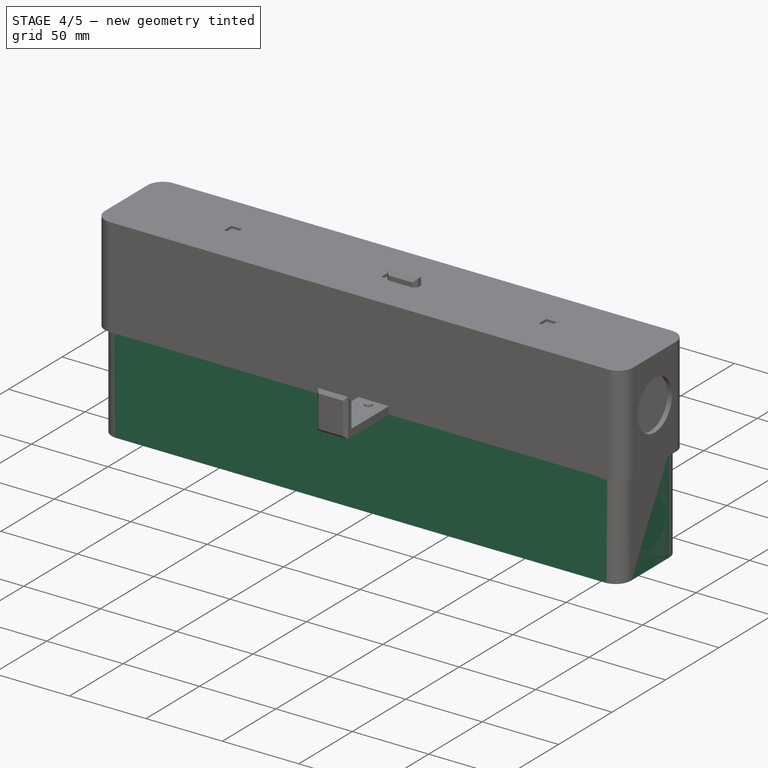
[diagram: stage 4 of 5 — iso view after this stage's code; geometry added in this stage tinted green]
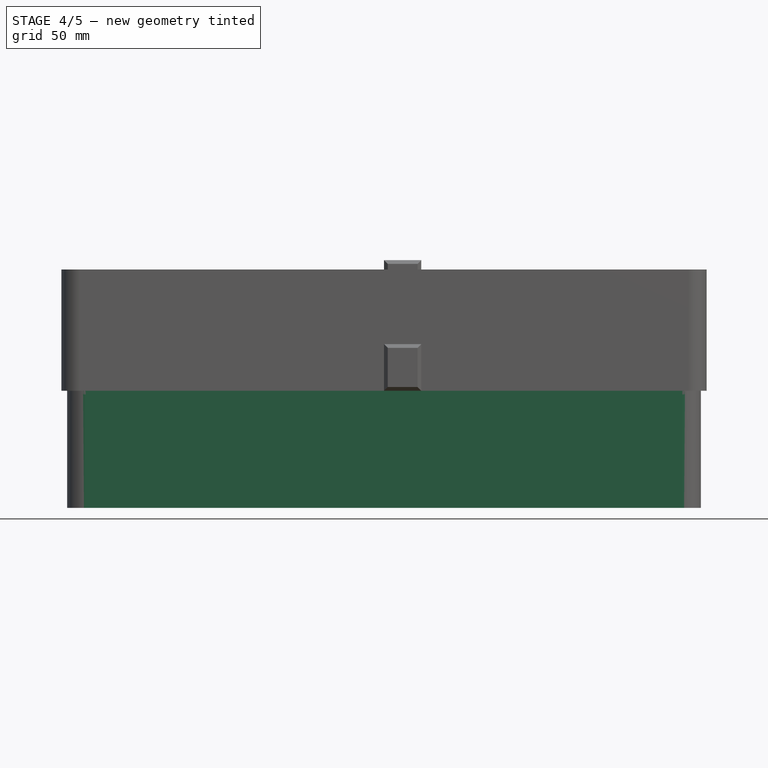
[diagram: stage 4 of 5 — front view after this stage's code; geometry added in this stage tinted green]
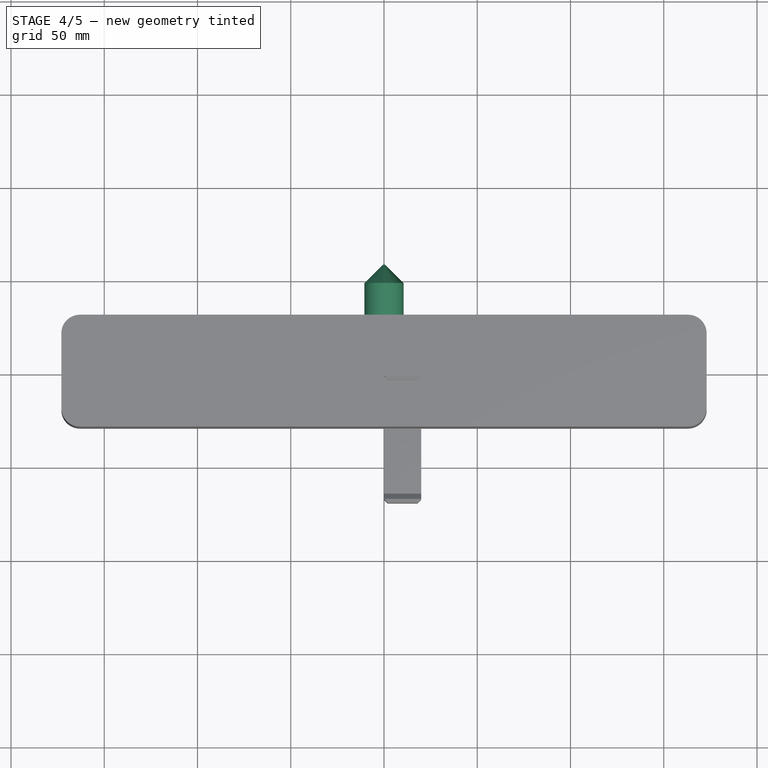
[diagram: stage 4 of 5 — top view after this stage's code; geometry added in this stage tinted green]
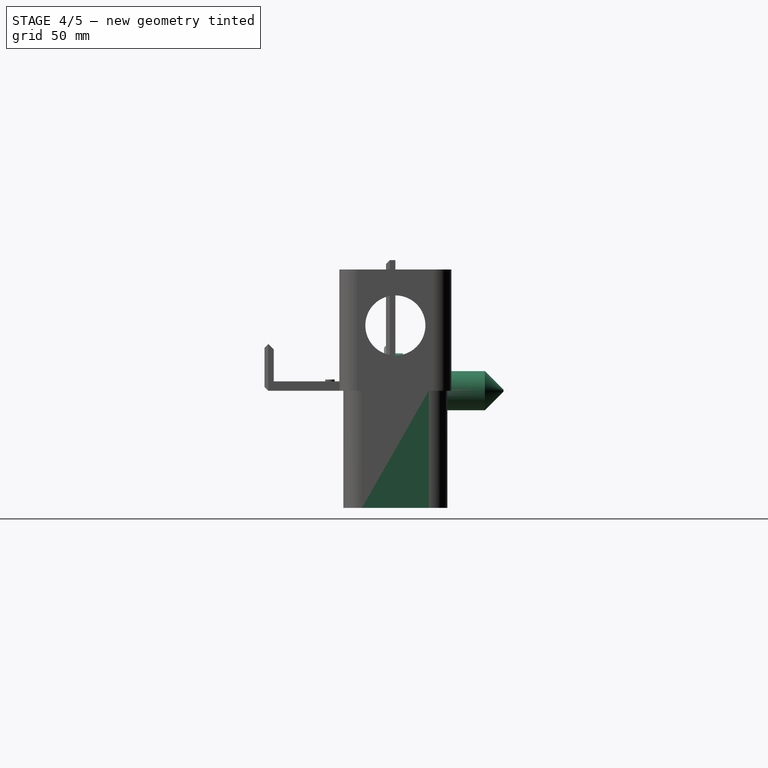
[diagram: stage 4 of 5 — right view after this stage's code; geometry added in this stage tinted green]
FEATURE [PartDesign::Body] Body
  AllowCompound = false
  Group = -> [Sketch,Pad,Sketch001,Hole]
  Origin = -> Origin
  Tip = -> Hole
FEATURE [Sketcher::SketchObject] Sketch002  label="Handteil"
  ArcFitTolerance = 1e-06
  AttachmentSupport = -> [XZ_Plane001]
  FullyConstrained = true
  MakeInternals = false
  MapMode = 5
  Placement = pos=(0,0,0) rot=(1,0,0;1.5708rad)
  sketch-geometry (7):
    g0: LineSegment StartX=21.6506 StartY=-12.5 StartZ=0 EndX=21.6506 EndY=12.5 EndZ=0
    g1: LineSegment StartX=21.6506 StartY=12.5 StartZ=0 EndX=0 EndY=25 EndZ=0
    g2: LineSegment StartX=0 StartY=25 StartZ=0 EndX=-21.6506 EndY=12.5 EndZ=0
    g3: LineSegment StartX=-21.6506 StartY=12.5 StartZ=0 EndX=-21.6506 EndY=-12.5 EndZ=0
    g4: LineSegment StartX=-21.6506 StartY=-12.5 StartZ=0 EndX=9.024e-13 EndY=-25 EndZ=0
    g5: LineSegment StartX=9.038e-13 StartY=-25 StartZ=0 EndX=21.6506 EndY=-12.5 EndZ=0
    g6: Circle [constr] CenterX=0 CenterY=0 CenterZ=0 NormalX=0 NormalY=0 NormalZ=1 AngleXU=0 Radius=25
  constraints (16):
    c: Coincident(g0,g1)
    c: Coincident(g1,g2)
    c: Coincident(g2,g3)
    c: Coincident(g3,g4)
    c: Coincident(g4,g5)
    c: Coincident(g5,g0)
    c: Equal(g0, g1-g5) x5
    c: PointOnObject(g0,g6)
    c: PointOnObject(g1,g6)
    c: PointOnObject(g2,g6)
    c: PointOnObject(g3,g6)
    c: PointOnObject(g4,g6)
    c: PointOnObject(g5,g6)
    c: Coincident(g6,g-1)
    c: PointOnObject(g1,g-2)
    c: DistanceY(g6,g1) = 25
FEATURE [PartDesign::Pad] Pad001
  Direction = (0,-1,2e-16)
  Length = 6
  Length2 = 10
  Placement = pos=(0,0,0) rot=(1,0,0;1.5708rad)
  Profile = -> Sketch002
  ReferenceAxis = -> Sketch002 [N_Axis]
  Refine = true
  Suppressed = false
  Type = 0
FEATURE [Sketcher::SketchObject] Sketch003
  ArcFitTolerance = 1e-06
  AttachmentSupport = -> [XZ_Plane001]
  FullyConstrained = true
  MakeInternals = false
  MapMode = 5
  Placement = pos=(0,0,0) rot=(1,0,0;1.5708rad)
  sketch-geometry (1):
    g0: Circle CenterX=0 CenterY=0 CenterZ=0 NormalX=0 NormalY=0 NormalZ=1 AngleXU=0 Radius=20
  constraints (2):
    c: Coincident(g0,g-1)
    c: Diameter(g0) = 40
FEATURE [PartDesign::Pad] Pad002
  BaseFeature = -> Pad001
  Direction = (0,-1,2e-16)
  Length = 4
  Length2 = 10
  Placement = pos=(0,0,0) rot=(1,0,0;1.5708rad)
  Profile = -> Sketch003 [Edge1]
  ReferenceAxis = -> Sketch003 [N_Axis]
  Refine = true
  Reversed = true
  Suppressed = false
  Type = 0
FEATURE [Sketcher::SketchObject] Sketch004
  ArcFitTolerance = 1e-06
  AttachmentSupport = -> [Pad002]
  FullyConstrained = true
  MakeInternals = false
  MapMode = 5
  Placement = pos=(0,4,0) rot=(-1,0,0;1.5708rad)
  sketch-geometry (1):
    g0: Circle CenterX=0 CenterY=0 CenterZ=0 NormalX=0 NormalY=0 NormalZ=1 AngleXU=0 Radius=15.9
  constraints (2):
    c: Coincident(g0,g-1)
    c: Diameter(g0) = 31.8
FEATURE [PartDesign::Pad] Pad003
  BaseFeature = -> Pad002
  Direction = (0,1,2e-16)
  Length = 2
  Length2 = 10
  Placement = pos=(0,0,0) rot=(1,0,0;1.5708rad)
  Profile = -> Sketch004
  ReferenceAxis = -> Sketch004 [N_Axis]
  Refine = true
  Suppressed = false
  Type = 0
FEATURE [Sketcher::SketchObject] Sketch005
  ArcFitTolerance = 1e-06
  AttachmentSupport = -> [Pad003]
  FullyConstrained = true
  MakeInternals = false
  MapMode = 5
  Placement = pos=(0,6,0) rot=(-1,0,0;1.5708rad)
  sketch-geometry (1):
    g0: Circle CenterX=0 CenterY=0 CenterZ=0 NormalX=0 NormalY=0 NormalZ=1 AngleXU=0 Radius=10.5
  constraints (2):
    c: Coincident(g0,g-1)
    c: Diameter(g0) = 21
FEATURE [PartDesign::Pad] Pad004
  BaseFeature = -> Pad003
  Direction = (0,1,2e-16)
  Length = 15
  Length2 = 10
  Placement = pos=(0,0,0) rot=(1,0,0;1.5708rad)
  Profile = -> Sketch005
  ReferenceAxis = -> Sketch005 [N_Axis]
  Refine = true
  Suppressed = false
  Type = 0
FEATURE [Sketcher::SketchObject] Sketch006
  ArcFitTolerance = 1e-06
  AttachmentSupport = -> [Pad004]
  FullyConstrained = true
  MakeInternals = false
  MapMode = 5
  Placement = pos=(0,21,0) rot=(-1,0,0;1.5708rad)
  sketch-geometry (1):
    g0: Circle CenterX=0 CenterY=0 CenterZ=0 NormalX=0 NormalY=0 NormalZ=1 AngleXU=0 Radius=10.5
  constraints (2):
    c: Coincident(g0,g-1)
    c: Diameter(g0) = 21
FEATURE [PartDesign::Pad] Pad005
  BaseFeature = -> Pad004
  Direction = (0,1,2e-16)
  Length = 37
  Length2 = 10
  Placement = pos=(0,0,0) rot=(1,0,0;1.5708rad)
  Profile = -> Sketch006
  ReferenceAxis = -> Sketch006 [N_Axis]
  Refine = true
  Suppressed = false
  Type = 0
FEATURE [Sketcher::SketchObject] Sketch007  label="Body001"
  ArcFitTolerance = 1e-06
  AttachmentSupport = -> [XY_Plane002]
  FullyConstrained = true
  MakeInternals = false
  MapMode = 5
  expr: Constraints[24] = Spreadsheet.BODY_ROUND
  expr: Constraints[25] = Spreadsheet.BODY_ROUND
  expr: Constraints[26] = Spreadsheet.BODY_ROUND
  expr: Constraints[27] = Spreadsheet.BODY_ROUND
  expr: Constraints[6] = Spreadsheet.BODY_X
  expr: Constraints[7] = Spreadsheet.BODY_Y
  sketch-geometry (13):
    g0: LineSegment StartX=-173 StartY=20 StartZ=0 EndX=-173 EndY=-20 EndZ=0
    g1: LineSegment StartX=-163 StartY=-30 StartZ=0 EndX=163 EndY=-30 EndZ=0
    g2: LineSegment StartX=173 StartY=-20 StartZ=0 EndX=173 EndY=20 EndZ=0
    g3: LineSegment StartX=163 StartY=30 StartZ=0 EndX=-163 EndY=30 EndZ=0
    g4: GeomPoint [constr] X=0 Y=0 Z=0
    g5: ArcOfCircle CenterX=163 CenterY=-20 CenterZ=0 NormalX=0 NormalY=0 NormalZ=1 AngleXU=0 Radius=10 StartAngle=4.71239 EndAngle=6.28319
    g6: GeomPoint [constr] X=173 Y=-30 Z=0
    g7: ArcOfCircle CenterX=163 CenterY=20 CenterZ=0 NormalX=0 NormalY=0 NormalZ=1 AngleXU=0 Radius=10 StartAngle=0 EndAngle=1.5708
    g8: GeomPoint [constr] X=173 Y=30 Z=0
    g9: ArcOfCircle CenterX=-163 CenterY=20 CenterZ=0 NormalX=0 NormalY=0 NormalZ=1 AngleXU=0 Radius=10 StartAngle=1.5708 EndAngle=3.14159
    g10: GeomPoint [constr] X=-173 Y=30 Z=0
    g11: ArcOfCircle CenterX=-163 CenterY=-20 CenterZ=0 NormalX=0 NormalY=0 NormalZ=1 AngleXU=0 Radius=10 StartAngle=3.14159 EndAngle=4.71239
    g12: GeomPoint [constr] X=-173 Y=-30 Z=0
  constraints (28):
    c: Vertical(g0)
    c: Vertical(g2)
    c: Horizontal(g1)
    c: Horizontal(g3)
    c: Symmetric(g6,g10,g4)
    c: Coincident(g4,g-1)
    c: DistanceX(g10,g8) = 346
    c: DistanceY(g6,g8) = 60
    c: PointOnObject(g6,g1)
    c: PointOnObject(g6,g2)
    c: Tangent(g1,g5) = -1.5708
    c: Tangent(g2,g5) = -1.5708
    c: PointOnObject(g8,g2)
    c: PointOnObject(g8,g3)
    c: Tangent(g2,g7) = -1.5708
    c: Tangent(g3,g7) = -1.5708
    c: PointOnObject(g10,g0)
    c: PointOnObject(g10,g3)
    c: Tangent(g0,g9) = -1.5708
    c: Tangent(g3,g9) = -1.5708
    c: PointOnObject(g12,g0)
    c: PointOnObject(g12,g1)
    c: Tangent(g0,g11) = -1.5708
    c: Tangent(g1,g11) = -1.5708
    c: DistanceX(g5,g6) = 10
    c: DistanceX(g7,g2) = 10
    c: DistanceX(g0,g11) = 10
    c: DistanceX(g0,g9) = 10
FEATURE [Sketcher::SketchObject] Sketch008  label="Ausschnitt"
  ArcFitTolerance = 1e-06
  AttachmentSupport = -> [XY_Plane002]
  FullyConstrained = true
  MakeInternals = false
  MapMode = 5
  expr: .AttachmentOffset.Base.z = 0
  expr: Constraints[24] = Spreadsheet.BODY_ROUND
  expr: Constraints[25] = Spreadsheet.BODY_ROUND
  expr: Constraints[26] = Spreadsheet.BODY_ROUND
  expr: Constraints[27] = Spreadsheet.BODY_ROUND
  expr: Constraints[6] = Spreadsheet.BODY_X - 3 - 3
  expr: Constraints[7] = Spreadsheet.BODY_Y - 2 - 2
  sketch-geometry (13):
    g0: LineSegment StartX=-170 StartY=18 StartZ=0 EndX=-170 EndY=-18 EndZ=0
    g1: LineSegment StartX=-160 StartY=-28 StartZ=0 EndX=160 EndY=-28 EndZ=0
    g2: LineSegment StartX=170 StartY=-18 StartZ=0 EndX=170 EndY=18 EndZ=0
    g3: LineSegment StartX=160 StartY=28 StartZ=0 EndX=-160 EndY=28 EndZ=0
    g4: GeomPoint [constr] X=0 Y=0 Z=0
    g5: ArcOfCircle CenterX=160 CenterY=18 CenterZ=0 NormalX=0 NormalY=0 NormalZ=1 AngleXU=0 Radius=10 StartAngle=2.8638e-12 EndAngle=1.5708
    g6: GeomPoint [constr] X=170 Y=28 Z=0
    g7: ArcOfCircle CenterX=160 CenterY=-18 CenterZ=0 NormalX=0 NormalY=0 NormalZ=1 AngleXU=0 Radius=10 StartAngle=4.71239 EndAngle=6.28319
    g8: GeomPoint [constr] X=170 Y=-28 Z=0
    g9: ArcOfCircle CenterX=-160 CenterY=18 CenterZ=0 NormalX=0 NormalY=0 NormalZ=1 AngleXU=0 Radius=10 StartAngle=1.5708 EndAngle=3.14159
    g10: GeomPoint [constr] X=-170 Y=28 Z=0
    g11: ArcOfCircle CenterX=-160 CenterY=-18 CenterZ=0 NormalX=0 NormalY=0 NormalZ=1 AngleXU=0 Radius=10 StartAngle=3.14159 EndAngle=4.71239
    g12: GeomPoint [constr] X=-170 Y=-28 Z=0
  constraints (28):
    c: Vertical(g0)
    c: Vertical(g2)
    c: Horizontal(g1)
    c: Horizontal(g3)
    c: Symmetric(g8,g10,g4)
    c: Coincident(g4,g-1)
    c: DistanceX(g10,g6) = 340
    c: DistanceY(g8,g6) = 56
    c: PointOnObject(g6,g2)
    c: PointOnObject(g6,g3)
    c: Tangent(g2,g5) = -1.5708
    c: Tangent(g3,g5) = -1.5708
    c: PointOnObject(g8,g1)
    c: PointOnObject(g8,g2)
    c: Tangent(g1,g7) = -1.5708
    c: Tangent(g2,g7) = -1.5708
    c: PointOnObject(g10,g0)
    c: PointOnObject(g10,g3)
    c: Tangent(g0,g9) = -1.5708
    c: Tangent(g3,g9) = -1.5708
    c: PointOnObject(g12,g0)
    c: PointOnObject(g12,g1)
    c: Tangent(g0,g11) = -1.5708
    c: Tangent(g1,g11) = -1.5708
    c: DistanceX(g0,g9) = 10
    c: DistanceX(g0,g11) = 10
    c: DistanceX(g5,g2) = 10
    c: DistanceX(g7,g2) = 10
FEATURE [Sketcher::SketchObject] Sketch009
  ArcFitTolerance = 1e-06
  FullyConstrained = true
  MakeInternals = false
  MapMode = 5
  Placement = pos=(-173,0,0) rot=(0.57735,-0.57735,-0.57735;2.0944rad)
  expr: Constraints[1] = Spreadsheet.BODY_Z - Spreadsheet.HOLE_BODY_HANDRAD
  expr: Constraints[2] = 32 + 0.2
  sketch-geometry (1):
    g0: Circle CenterX=0 CenterY=35 CenterZ=0 NormalX=0 NormalY=0 NormalZ=1 AngleXU=0 Radius=16.1
  constraints (3):
    c: PointOnObject(g0,g-2)
    c: DistanceY(g-1,g0) = 35
    c: Diameter(g0) = 32.2
FEATURE [Sketcher::SketchObject] Sketch010
  ArcFitTolerance = 1e-06
  AttachmentSupport = -> [XY_Plane003]
  FullyConstrained = true
  MakeInternals = false
  MapMode = 5
  expr: Constraints[24] = Spreadsheet.BODY_ROUND
  expr: Constraints[25] = Spreadsheet.BODY_ROUND
  expr: Constraints[26] = Spreadsheet.BODY_ROUND
  expr: Constraints[27] = Spreadsheet.BODY_ROUND
  expr: Constraints[6] = Spreadsheet.BODY_X - 3 - 3 - 0.1 - 0.1
  expr: Constraints[7] = Spreadsheet.BODY_Y - 2 - 2 - 0.1 - 0.1
  sketch-geometry (13):
    g0: LineSegment StartX=-169.9 StartY=17.9 StartZ=0 EndX=-169.9 EndY=-17.9 EndZ=0
    g1: LineSegment StartX=-159.9 StartY=-27.9 StartZ=0 EndX=159.9 EndY=-27.9 EndZ=0
    g2: LineSegment StartX=169.9 StartY=-17.9 StartZ=0 EndX=169.9 EndY=17.9 EndZ=0
    g3: LineSegment StartX=159.9 StartY=27.9 StartZ=0 EndX=-159.9 EndY=27.9 EndZ=0
    g4: GeomPoint [constr] X=0 Y=0 Z=0
    g5: ArcOfCircle CenterX=159.9 CenterY=17.9 CenterZ=0 NormalX=0 NormalY=0 NormalZ=1 AngleXU=0 Radius=10 StartAngle=2.8629e-12 EndAngle=1.5708
    g6: GeomPoint [constr] X=169.9 Y=27.9 Z=0
    g7: ArcOfCircle CenterX=159.9 CenterY=-17.9 CenterZ=0 NormalX=0 NormalY=0 NormalZ=1 AngleXU=0 Radius=10 StartAngle=4.71239 EndAngle=6.28319
    g8: GeomPoint [constr] X=169.9 Y=-27.9 Z=0
    g9: ArcOfCircle CenterX=-159.9 CenterY=-17.9 CenterZ=0 NormalX=0 NormalY=0 NormalZ=1 AngleXU=0 Radius=10 StartAngle=3.14159 EndAngle=4.71239
    g10: GeomPoint [constr] X=-169.9 Y=-27.9 Z=0
    g11: ArcOfCircle CenterX=-159.9 CenterY=17.9 CenterZ=0 NormalX=0 NormalY=0 NormalZ=1 AngleXU=0 Radius=10 StartAngle=1.5708 EndAngle=3.14159
    g12: GeomPoint [constr] X=-169.9 Y=27.9 Z=0
  constraints (28):
    c: Vertical(g0)
    c: Vertical(g2)
    c: Horizontal(g1)
    c: Horizontal(g3)
    c: Symmetric(g8,g12,g4)
    c: Coincident(g4,g-1)
    c: DistanceX(g12,g6) = 339.8
    c: DistanceY(g8,g6) = 55.8
    c: PointOnObject(g6,g2)
    c: PointOnObject(g6,g3)
    c: Tangent(g2,g5) = -1.5708
    c: Tangent(g3,g5) = -1.5708
    c: PointOnObject(g8,g1)
    c: PointOnObject(g8,g2)
    c: Tangent(g1,g7) = -1.5708
    c: Tangent(g2,g7) = -1.5708
    c: PointOnObject(g10,g0)
    c: PointOnObject(g10,g1)
    c: Tangent(g0,g9) = -1.5708
    c: Tangent(g1,g9) = -1.5708
    c: PointOnObject(g12,g0)
    c: PointOnObject(g12,g3)
    c: Tangent(g0,g11) = -1.5708
    c: Tangent(g3,g11) = -1.5708
    c: DistanceX(g0,g11) = 10
    c: DistanceX(g5,g2) = 10
    c: DistanceX(g7,g2) = 10
    c: DistanceX(g0,g9) = 10
FEATURE [PartDesign::Pad] Pad007
  Direction = (0,0,1)
  Length = 62.8
  Length2 = 10
  Profile = -> Sketch010
  ReferenceAxis = -> Sketch010 [N_Axis]
  Refine = true
  Reversed = true
  Suppressed = false
  Type = 0
  expr: Length = Spreadsheet.BODY_Z - 2 - 0.2
FEATURE [Sketcher::SketchObject] Sketch022  label="Klebenasen"
  ArcFitTolerance = 1e-06
  AttachmentOffset = pos=(0,0,-2) rot=(0,0,1;0rad)
  AttachmentSupport = -> [XY_Plane003]
  FullyConstrained = true
  MakeInternals = false
  MapMode = 5
  Placement = pos=(0,0,-2) rot=(0,0,1;0rad)
  expr: Constraints[13] = Spreadsheet.BODY_X / 2
  expr: Constraints[18] = 70
  expr: Constraints[27] = Spreadsheet.BODY_X / 2
  sketch-geometry (14):
    g0: LineSegment StartX=-95.5 StartY=-11.5 StartZ=0 EndX=-110.5 EndY=-11.5 EndZ=0
    g1: LineSegment StartX=-110.5 StartY=-11.5 StartZ=0 EndX=-110.5 EndY=18.5 EndZ=0
    g2: LineSegment StartX=-110.5 StartY=18.5 StartZ=0 EndX=-95.5 EndY=18.5 EndZ=0
    g3: LineSegment StartX=-95.5 StartY=18.5 StartZ=0 EndX=-95.5 EndY=-11.5 EndZ=0
    g4: LineSegment [constr] StartX=0 StartY=0 StartZ=0 EndX=-173 EndY=0 EndZ=0
    g5: LineSegment [constr] StartX=-173 StartY=0 StartZ=0 EndX=-173 EndY=18.5 EndZ=0
    g6: LineSegment [constr] StartX=-173 StartY=18.5 StartZ=0 EndX=-103 EndY=18.5 EndZ=0
    g7: LineSegment [constr] StartX=0 StartY=0 StartZ=0 EndX=173 EndY=0 EndZ=0
    g8: LineSegment [constr] StartX=173 StartY=0 StartZ=0 EndX=173 EndY=18.5 EndZ=0
    g9: LineSegment [constr] StartX=173 StartY=18.5 StartZ=0 EndX=103 EndY=18.5 EndZ=0
    g10: LineSegment StartX=95.5 StartY=18.5 StartZ=0 EndX=95.5 EndY=-11.5 EndZ=0
    g11: LineSegment StartX=95.5 StartY=-11.5 StartZ=0 EndX=110.5 EndY=-11.5 EndZ=0
    g12: LineSegment StartX=110.5 StartY=-11.5 StartZ=0 EndX=110.5 EndY=18.5 EndZ=0
    g13: LineSegment StartX=110.5 StartY=18.5 StartZ=0 EndX=95.5 EndY=18.5 EndZ=0
  constraints (40):
    c: Coincident(g0,g1)
    c: Coincident(g1,g2)
    c: Coincident(g2,g3)
    c: Coincident(g3,g0)
    c: Horizontal(g0)
    c: Horizontal(g2)
    c: Vertical(g1)
    c: Vertical(g3)
    c: DistanceY(g0,g-1) = 11.5
    c: DistanceX(g2,g2) = 15
    c: DistanceY(g1,g1) = 30
    c: Coincident(g4,g-1)
    c: Horizontal(g4)
    c: DistanceX(g4,g4) = 173
    c: Coincident(g5,g4)
    c: Vertical(g5)
    c: Coincident(g6,g5)
    c: Horizontal(g6)
    c: DistanceX(g6,g6) = 70
    c: Symmetric(g2,g1,g6)
    c: Coincident(g4,g7)
    c: PointOnObject(g7,g-1)
    c: Coincident(g7,g8)
    c: Vertical(g8)
    c: Coincident(g8,g9)
    c: Horizontal(g9)
    c: DistanceX(g9,g9) = 70
    c: Distance(g7) = 173
    c: Coincident(g10,g11)
    c: Coincident(g11,g12)
    c: Coincident(g12,g13)
    c: Coincident(g13,g10)
    c: Vertical(g10)
    c: Vertical(g12)
    c: Horizontal(g11)
    c: Horizontal(g13)
    c: DistanceX(g13,g13) = 15
    c: DistanceY(g10,g4) = 11.5
    c: DistanceY(g10,g10) = 30
    c: Symmetric(g12,g10,g9)
FEATURE [PartDesign::Body] Body003  label="Deckel"
  AllowCompound = false
  Group = -> [Sketch010,Pad007,Sketch011,Pocket002,Sketch012,Pocket003,Sketch013,Hole001,Sketch014,Pad008,Sketch015,Pocket004,Sketch018,Pocket006,Fillet,Fillet001,Sketch022]
  Origin = -> Origin003
  Tip = -> Fillet001
FEATURE [PartDesign::Chamfer] Chamfer
  Angle = 45
  Base = -> Pad005 [Face1]
  BaseFeature = -> Pad005
  ChamferType = 0
  FlipDirection = false
  Placement = pos=(0,0,0) rot=(1,0,0;1.5708rad)
  Refine = true
  Size = 10
  Size2 = 1
  SupportTransform = false
  Suppressed = false
  UseAllEdges = false
FEATURE [PartDesign::Fillet] Fillet002
  Base = -> Chamfer [Edge26,Edge29,Edge28,Edge24,Edge20,Edge22]
  BaseFeature = -> Chamfer
  Placement = pos=(0,0,0) rot=(1,0,0;1.5708rad)
  Radius = 2
  Refine = true
  SupportTransform = false
  Suppressed = false
  UseAllEdges = false
FEATURE [PartDesign::Fillet] Fillet003
  Base = -> Fillet002 [Edge5,Edge1,Edge4,Edge18,Edge28,Edge17]
  BaseFeature = -> Fillet002
  Placement = pos=(0,0,0) rot=(1,0,0;1.5708rad)
  Radius = 4
  Refine = true
  SupportTransform = false
  Suppressed = false
  UseAllEdges = false
FEATURE [PartDesign::Chamfer] Chamfer004
  Angle = 45
  Base = -> Pad014 [Edge4,Edge12,Edge7,Edge10]
  BaseFeature = -> Pad014
  ChamferType = 0
  FlipDirection = false
  Refine = true
  Size = 1.6
  Size2 = 1
  SupportTransform = false
  Suppressed = false
  UseAllEdges = false
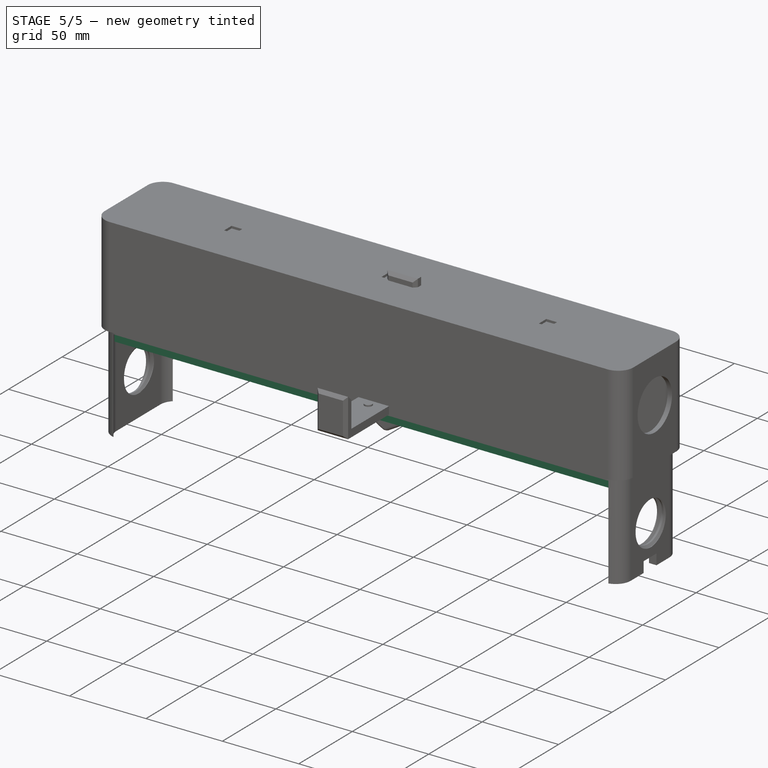
[diagram: stage 5 of 5 — iso view after this stage's code; geometry added in this stage tinted green]
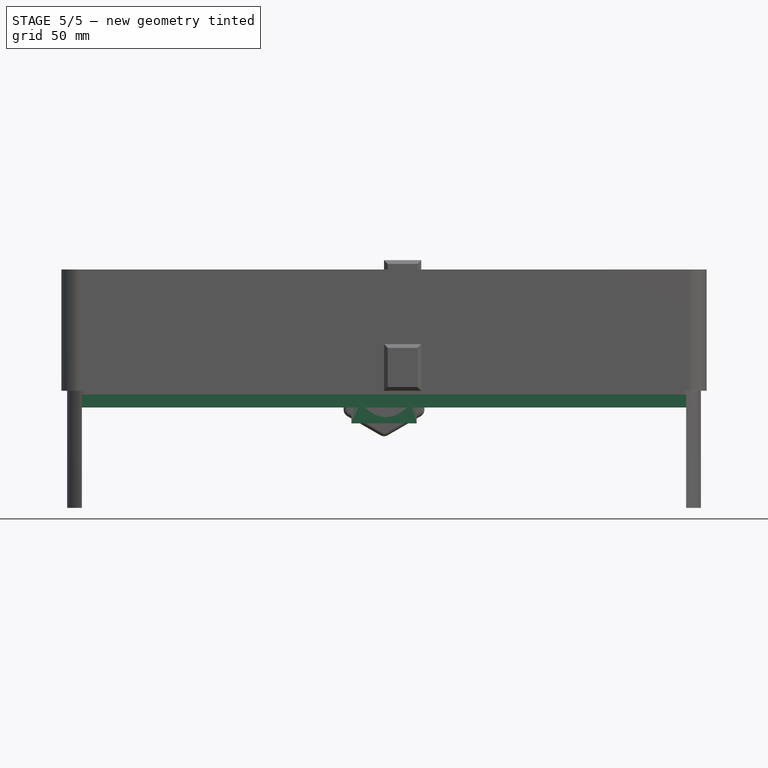
[diagram: stage 5 of 5 — front view after this stage's code; geometry added in this stage tinted green]
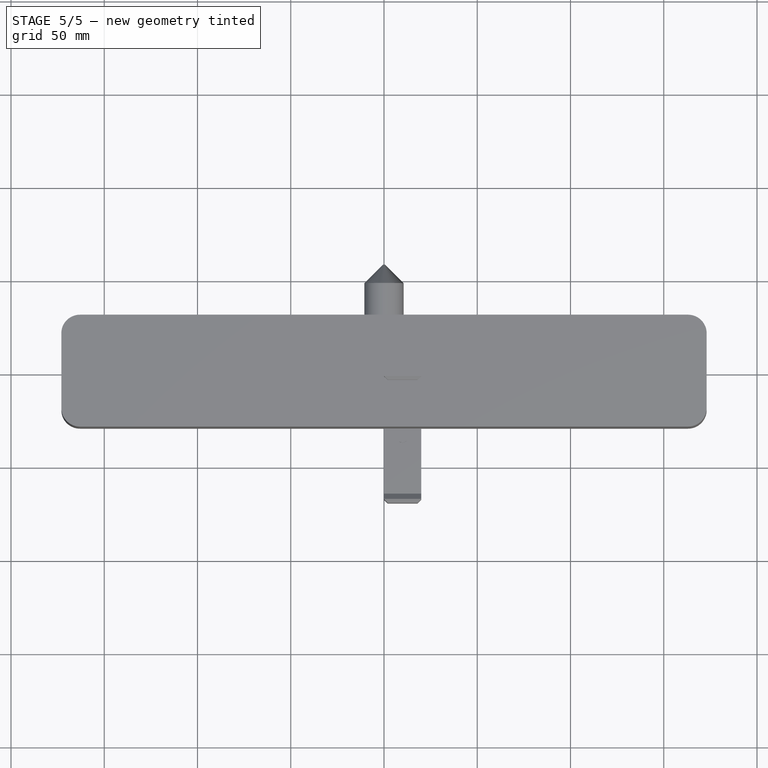
[diagram: stage 5 of 5 — top view after this stage's code; geometry added in this stage tinted green]
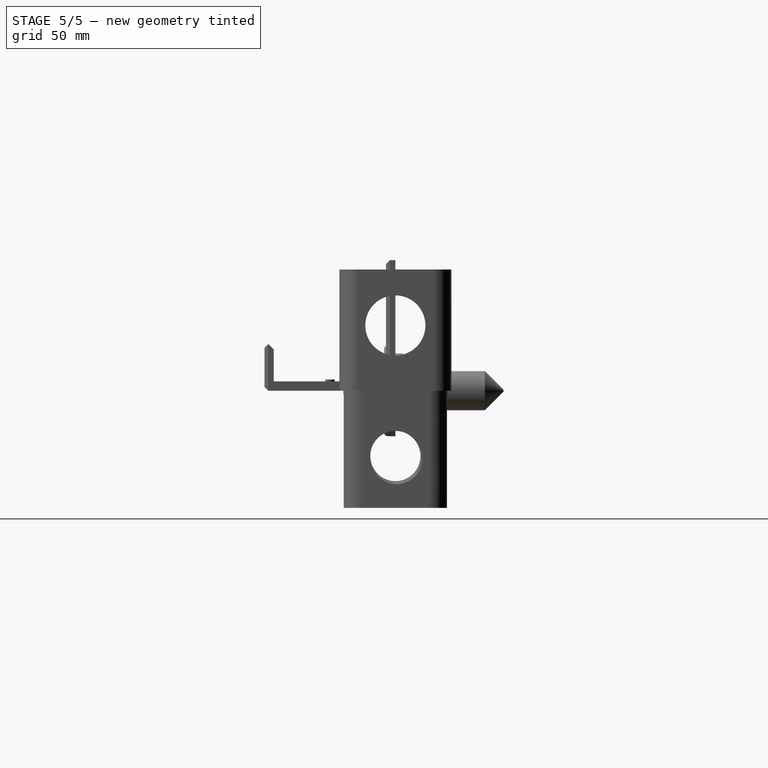
[diagram: stage 5 of 5 — right view after this stage's code; geometry added in this stage tinted green]
FEATURE [Spreadsheet::Sheet] Spreadsheet
  cells = A2='BODY_X; B2(BODY_X)==340 + 3 + 3; A3='BODY_Y; B3(BODY_Y)=60; A4='BODY_Z; B4(BODY_Z)=65; A5='BODY_ROUND; B5(BODY_ROUND)=10; A7='HOLE_BODY_HANDRAD; B7(HOLE_BODY_HANDRAD)=30
FEATURE [Sketcher::SketchObject] Sketch
  ArcFitTolerance = 1e-06
  AttachmentSupport = -> [XZ_Plane]
  FullyConstrained = true
  MakeInternals = false
  MapMode = 5
  Placement = pos=(0,0,0) rot=(1,0,0;1.5708rad)
  sketch-geometry (5):
    g0: LineSegment StartX=-17.5 StartY=17.5 StartZ=0 EndX=-17.5 EndY=-17.5 EndZ=0
    g1: LineSegment StartX=-17.5 StartY=-17.5 StartZ=0 EndX=17.5 EndY=-17.5 EndZ=0
    g2: LineSegment StartX=17.5 StartY=-17.5 StartZ=0 EndX=17.5 EndY=17.5 EndZ=0
    g3: LineSegment StartX=17.5 StartY=17.5 StartZ=0 EndX=-17.5 EndY=17.5 EndZ=0
    g4: GeomPoint [constr] X=0 Y=0 Z=0
  constraints (12):
    c: Coincident(g0,g1)
    c: Coincident(g1,g2)
    c: Coincident(g2,g3)
    c: Coincident(g3,g0)
    c: Vertical(g0)
    c: Vertical(g2)
    c: Horizontal(g1)
    c: Horizontal(g3)
    c: Symmetric(g2,g0,g4)
    c: Coincident(g4,g-1)
    c: DistanceX(g3,g3) = 35
    c: DistanceY(g0,g0) = 35
FEATURE [PartDesign::Pad] Pad
  Direction = (0,-1,2e-16)
  Length = 7
  Length2 = 10
  Placement = pos=(0,0,0) rot=(1,0,0;1.5708rad)
  Profile = -> Sketch
  ReferenceAxis = -> Sketch [N_Axis]
  Refine = true
  Suppressed = false
  Type = 0
FEATURE [Sketcher::SketchObject] Sketch001
  ArcFitTolerance = 1e-06
  AttachmentSupport = -> [XZ_Plane]
  FullyConstrained = true
  MakeInternals = false
  MapMode = 5
  Placement = pos=(0,0,0) rot=(1,0,0;1.5708rad)
  sketch-geometry (1):
    g0: Circle CenterX=0 CenterY=0 CenterZ=0 NormalX=0 NormalY=0 NormalZ=1 AngleXU=0 Radius=15
  constraints (2):
    c: Coincident(g0,g-1)
    c: Diameter(g0) = 30
FEATURE [PartDesign::Hole] Hole
  BaseFeature = -> Pad
  CustomThreadClearance = 0.4
  Depth = 100.98
  DepthType = 1
  Diameter = 26.9
  DrillForDepth = false
  DrillPoint = 1
  DrillPointAngle = 118
  HoleCutCountersinkAngle = 90
  HoleCutCustomValues = false
  HoleCutDepth = 0
  HoleCutDiameter = 27
  HoleCutType = 0
  ModelThread = true
  Placement = pos=(0,0,0) rot=(1,0,0;1.5708rad)
  Profile = -> Sketch001
  Refine = true
  Reversed = true
  Suppressed = false
  Tapered = false
  TaperedAngle = 90
  ThreadClass = 0
  ThreadDepth = 100.98
  ThreadDepthType = 0
  ThreadDirection = 0
  ThreadFit = 0
  ThreadSize = 28
  ThreadType = 1
  Threaded = true
  UseCustomThreadClearance = true
FEATURE [Part::FeaturePython] ThreadedRod  label="M30x20-Gewindestange"  # WARN: FeaturePython — macro-defined, semantics opaque (R4)
  Diameter = 19
  DiameterCustom = 6
  Invert = false
  LeftHanded = false
  Length = 20
  MatchOuter = false
  OffsetAngle = 0
  PitchCustom = 1
  Placement = pos=(0,21,0) rot=(-1,0,0;1.5708rad)
  Thread = true
  Type = 4
FEATURE [Sketcher::SketchObject] Sketch011  label="Ausschnitt schneider"
  ArcFitTolerance = 1e-06
  AttachmentSupport = -> [XY_Plane003]
  FullyConstrained = true
  MakeInternals = false
  MapMode = 5
  sketch-geometry (5):
    g0: LineSegment StartX=-165.5 StartY=-11.25 StartZ=0 EndX=-165.5 EndY=-20.75 EndZ=0
    g1: LineSegment StartX=-165.5 StartY=-20.75 StartZ=0 EndX=165.5 EndY=-20.75 EndZ=0
    g2: LineSegment StartX=165.5 StartY=-20.75 StartZ=0 EndX=165.5 EndY=-11.25 EndZ=0
    g3: LineSegment StartX=165.5 StartY=-11.25 StartZ=0 EndX=-165.5 EndY=-11.25 EndZ=0
    g4: GeomPoint [constr] X=0 Y=-16 Z=0
  constraints (13):
    c: Coincident(g0,g1)
    c: Coincident(g1,g2)
    c: Coincident(g2,g3)
    c: Coincident(g3,g0)
    c: Vertical(g0)
    c: Vertical(g2)
    c: Horizontal(g1)
    c: Horizontal(g3)
    c: Symmetric(g2,g0,g4)
    c: PointOnObject(g4,g-2)
    c: DistanceX(g3,g3) = 331
    c: DistanceY(g0,g0) = 9.5
    c: DistanceY(g4,g-1) = 16
FEATURE [PartDesign::Pocket] Pocket002
  BaseFeature = -> Pad007
  Direction = (0,0,-1)
  Length = 10
  Length2 = 5
  Profile = -> Sketch011
  ReferenceAxis = -> Sketch011 [N_Axis]
  Refine = true
  Suppressed = false
  Type = 0
  expr: Length = 10 mm
FEATURE [Sketcher::SketchObject] Sketch012  label="Auschnitt deckel unten"
  ArcFitTolerance = 1e-06
  AttachmentOffset = pos=(0,0,-2) rot=(0,0,1;0rad)
  AttachmentSupport = -> [XY_Plane003]
  FullyConstrained = true
  MakeInternals = false
  MapMode = 5
  Placement = pos=(0,0,-2) rot=(0,0,1;0rad)
  expr: Constraints[24] = Spreadsheet.BODY_ROUND
  expr: Constraints[25] = Spreadsheet.BODY_ROUND
  expr: Constraints[26] = Spreadsheet.BODY_ROUND
  expr: Constraints[27] = Spreadsheet.BODY_ROUND
  expr: Constraints[7] = Spreadsheet.BODY_Z - 2 - 2
  sketch-geometry (13):
    g0: LineSegment StartX=-165 StartY=20.5 StartZ=0 EndX=-165 EndY=-20.5 EndZ=0
    g1: LineSegment StartX=-155 StartY=-30.5 StartZ=0 EndX=155 EndY=-30.5 EndZ=0
    g2: LineSegment StartX=165 StartY=-20.5 StartZ=0 EndX=165 EndY=20.5 EndZ=0
    g3: LineSegment StartX=155 StartY=30.5 StartZ=0 EndX=-155 EndY=30.5 EndZ=0
    g4: GeomPoint [constr] X=0 Y=0 Z=0
    g5: ArcOfCircle CenterX=155 CenterY=20.5 CenterZ=0 NormalX=0 NormalY=0 NormalZ=1 AngleXU=0 Radius=10 StartAngle=2.8411e-12 EndAngle=1.5708
    g6: GeomPoint [constr] X=165 Y=30.5 Z=0
    g7: ArcOfCircle CenterX=155 CenterY=-20.5 CenterZ=0 NormalX=0 NormalY=0 NormalZ=1 AngleXU=0 Radius=10 StartAngle=4.71239 EndAngle=6.28319
    g8: GeomPoint [constr] X=165 Y=-30.5 Z=0
    g9: ArcOfCircle CenterX=-155 CenterY=-20.5 CenterZ=0 NormalX=0 NormalY=0 NormalZ=1 AngleXU=0 Radius=10 StartAngle=3.14159 EndAngle=4.71239
    g10: GeomPoint [constr] X=-165 Y=-30.5 Z=0
    g11: ArcOfCircle CenterX=-155 CenterY=20.5 CenterZ=0 NormalX=0 NormalY=0 NormalZ=1 AngleXU=0 Radius=10 StartAngle=1.5708 EndAngle=3.14159
    g12: GeomPoint [constr] X=-165 Y=30.5 Z=0
  constraints (28):
    c: Vertical(g0)
    c: Vertical(g2)
    c: Horizontal(g1)
    c: Horizontal(g3)
    c: Symmetric(g8,g12,g4)
    c: Coincident(g4,g-1)
    c: DistanceX(g12,g6) = 330
    c: DistanceY(g8,g6) = 61
    c: PointOnObject(g6,g2)
    c: PointOnObject(g6,g3)
    c: Tangent(g2,g5) = -1.5708
    c: Tangent(g3,g5) = -1.5708
    c: PointOnObject(g8,g1)
    c: PointOnObject(g8,g2)
    c: Tangent(g1,g7) = -1.5708
    c: Tangent(g2,g7) = -1.5708
    c: PointOnObject(g10,g0)
    c: PointOnObject(g10,g1)
    c: Tangent(g0,g9) = -1.5708
    c: Tangent(g1,g9) = -1.5708
    c: PointOnObject(g12,g0)
    c: PointOnObject(g12,g3)
    c: Tangent(g0,g11) = -1.5708
    c: Tangent(g3,g11) = -1.5708
    c: DistanceX(g0,g11) = 10
    c: DistanceX(g0,g9) = 10
    c: DistanceX(g7,g2) = 10
    c: DistanceX(g5,g2) = 10
FEATURE [PartDesign::Pocket] Pocket003
  BaseFeature = -> Pocket002
  Direction = (0,0,-1)
  Length = 5
  Length2 = 5
  Profile = -> Sketch012
  ReferenceAxis = -> Sketch012 [N_Axis]
  Refine = true
  Suppressed = false
  Type = 1
FEATURE [Sketcher::SketchObject] Sketch013
  ArcFitTolerance = 1e-06
  AttachmentSupport = -> [Pocket003]
  FullyConstrained = true
  MakeInternals = false
  MapMode = 5
  Placement = pos=(-169.9,0,0) rot=(0.57735,-0.57735,-0.57735;2.0944rad)
  expr: Constraints[2] = Spreadsheet.BODY_Z - Spreadsheet.HOLE_BODY_HANDRAD
  sketch-geometry (1):
    g0: Circle CenterX=0 CenterY=-35 CenterZ=0 NormalX=0 NormalY=0 NormalZ=1 AngleXU=0 Radius=15
  constraints (3):
    c: PointOnObject(g0,g-2)
    c: Diameter(g0) = 30
    c: DistanceY(g0,g-1) = 35
FEATURE [PartDesign::Hole] Hole001
  BaseFeature = -> Pocket003
  CustomThreadClearance = 0.4
  Depth = 356
  DepthType = 0
  Diameter = 26.9
  DrillForDepth = false
  DrillPoint = 1
  DrillPointAngle = 118
  HoleCutCountersinkAngle = 90
  HoleCutCustomValues = false
  HoleCutDepth = 0
  HoleCutDiameter = 0
  HoleCutType = 0
  ModelThread = true
  Profile = -> Sketch013
  Refine = true
  Suppressed = false
  Tapered = false
  TaperedAngle = 90
  ThreadClass = 0
  ThreadDepth = 356
  ThreadDepthType = 0
  ThreadDirection = 0
  ThreadFit = 0
  ThreadSize = 28
  ThreadType = 1
  Threaded = true
  UseCustomThreadClearance = true
  expr: Depth = Spreadsheet.BODY_X + 10
FEATURE [Sketcher::SketchObject] Sketch014  label="Halterung Schneider"
  ArcFitTolerance = 1e-06
  AttachmentSupport = -> [YZ_Plane003]
  FullyConstrained = true
  MakeInternals = false
  MapMode = 5
  Placement = pos=(0,0,0) rot=(0.57735,0.57735,0.57735;2.0944rad)
  sketch-geometry (8):
    g0: LineSegment StartX=-20.75 StartY=-2 StartZ=0 EndX=-22.75 EndY=-2 EndZ=0
    g1: LineSegment StartX=-22.75 StartY=-2 StartZ=0 EndX=-22.75 EndY=-9 EndZ=0
    g2: LineSegment StartX=-22.75 StartY=-9 StartZ=0 EndX=-9.25 EndY=-9 EndZ=0
    g3: LineSegment StartX=-9.25 StartY=-2 StartZ=0 EndX=-11.25 EndY=-2 EndZ=0
    g4: LineSegment StartX=-11.25 StartY=-2 StartZ=0 EndX=-11.25 EndY=-7 EndZ=0
    g5: LineSegment StartX=-11.25 StartY=-7 StartZ=0 EndX=-20.75 EndY=-7 EndZ=0
    g6: LineSegment StartX=-20.75 StartY=-7 StartZ=0 EndX=-20.75 EndY=-2 EndZ=0
    g7: LineSegment StartX=-9.25 StartY=-2 StartZ=0 EndX=-9.25 EndY=-9 EndZ=0
  constraints (24):
    c: Coincident(g0,g1)
    c: Vertical(g1)
    c: Coincident(g1,g2)
    c: Horizontal(g2)
    c: Horizontal(g3)
    c: Coincident(g3,g4)
    c: Vertical(g4)
    c: Coincident(g4,g5)
    c: Horizontal(g5)
    c: Coincident(g5,g6)
    c: Coincident(g6,g0)
    c: DistanceX(g5,g5) = 9.5
    c: DistanceX(g3,g-1) = 11.25
    c: Horizontal(g0)
    c: DistanceY(g3,g-1) = 2
    c: DistanceX(g3,g3) = 2
    c: Equal(g3,g0)
    c: DistanceX(g0,g3) = 9.5
    c: DistanceY(g2,g3) = 7
    c: DistanceY(g4,g3) = 5
    c: DistanceY(g1,g0) = 7
    c: Coincident(g7,g3)
    c: Coincident(g7,g2)
    c: Vertical(g7)
FEATURE [PartDesign::Pad] Pad008
  BaseFeature = -> Hole001
  Direction = (1,0,0)
  Length = 331
  Length2 = 10
  Midplane = true
  Profile = -> Sketch014
  ReferenceAxis = -> Sketch014 [N_Axis]
  Refine = true
  Suppressed = false
  Type = 0
FEATURE [Sketcher::SketchObject] Sketch015  label="Ausschnitt Folie nach oben"
  ArcFitTolerance = 1e-06
  AttachmentSupport = -> [XY_Plane003]
  FullyConstrained = true
  MakeInternals = false
  MapMode = 5
  expr: Constraints[10] = Spreadsheet.BODY_Y / 2
  sketch-geometry (5):
    g0: LineSegment StartX=-155 StartY=34 StartZ=0 EndX=-155 EndY=26 EndZ=0
    g1: LineSegment StartX=-155 StartY=26 StartZ=0 EndX=155 EndY=26 EndZ=0
    g2: LineSegment StartX=155 StartY=26 StartZ=0 EndX=155 EndY=34 EndZ=0
    g3: LineSegment StartX=155 StartY=34 StartZ=0 EndX=-155 EndY=34 EndZ=0
    g4: GeomPoint [constr] X=0 Y=30 Z=0
  constraints (13):
    c: Coincident(g0,g1)
    c: Coincident(g1,g2)
    c: Coincident(g2,g3)
    c: Coincident(g3,g0)
    c: Vertical(g0)
    c: Vertical(g2)
    c: Horizontal(g1)
    c: Horizontal(g3)
    c: Symmetric(g2,g0,g4)
    c: PointOnObject(g4,g-2)
    c: DistanceY(g-1,g4) = 30
    c: DistanceX(g3,g3) = 310
    c: DistanceY(g0,g0) = 8
FEATURE [PartDesign::Pocket] Pocket004
  BaseFeature = -> Pad008
  Direction = (0,0,-1)
  Length = 5
  Length2 = 5
  Profile = -> Sketch015
  ReferenceAxis = -> Sketch015 [N_Axis]
  Refine = true
  Suppressed = false
  Type = 1
FEATURE [Sketcher::SketchObject] Sketch018  label="Nut"
  ArcFitTolerance = 1e-06
  AttachmentOffset = pos=(0,0,173) rot=(0,0,1;0rad)
  AttachmentSupport = -> [YZ_Plane003]
  FullyConstrained = true
  MakeInternals = false
  MapMode = 5
  Placement = pos=(173,0,0) rot=(0.57735,0.57735,0.57735;2.0944rad)
  expr: .AttachmentOffset.Base.z = Spreadsheet.BODY_X / 2
  expr: Constraints[12] = Spreadsheet.BODY_Z - 0.2 - 7 / 2 - 2
  sketch-geometry (5):
    g0: LineSegment StartX=-6 StartY=-55.8 StartZ=0 EndX=-6 EndY=-62.8 EndZ=0
    g1: LineSegment StartX=-6 StartY=-62.8 StartZ=0 EndX=6 EndY=-62.8 EndZ=0
    g2: LineSegment StartX=6 StartY=-62.8 StartZ=0 EndX=6 EndY=-55.8 EndZ=0
    g3: LineSegment StartX=6 StartY=-55.8 StartZ=0 EndX=-6 EndY=-55.8 EndZ=0
    g4: GeomPoint [constr] X=0 Y=-59.3 Z=0
  constraints (13):
    c: Coincident(g0,g1)
    c: Coincident(g1,g2)
    c: Coincident(g2,g3)
    c: Coincident(g3,g0)
    c: Vertical(g0)
    c: Vertical(g2)
    c: Horizontal(g1)
    c: Horizontal(g3)
    c: Symmetric(g2,g0,g4)
    c: PointOnObject(g4,g-2)
    c: DistanceX(g3,g3) = 12
    c: DistanceY(g2,g2) = 7
    c: DistanceY(g4,g-1) = 59.3
FEATURE [PartDesign::Pocket] Pocket006
  BaseFeature = -> Pocket004
  Direction = (-1,0,0)
  Length = 8
  Length2 = 5
  Profile = -> Sketch018
  ReferenceAxis = -> Sketch018 [N_Axis]
  Refine = true
  Suppressed = false
  Type = 0
FEATURE [PartDesign::Fillet] Fillet
  Base = -> Pocket006 [Edge17,Edge50]
  BaseFeature = -> Pocket006
  Radius = 0.99
  Refine = true
  SupportTransform = false
  Suppressed = false
  UseAllEdges = false
FEATURE [PartDesign::Fillet] Fillet001
  Base = -> Fillet [Edge23,Edge2,Edge32,Edge7]
  BaseFeature = -> Fillet
  Radius = 0.99
  Refine = true
  SupportTransform = false
  Suppressed = false
  UseAllEdges = false
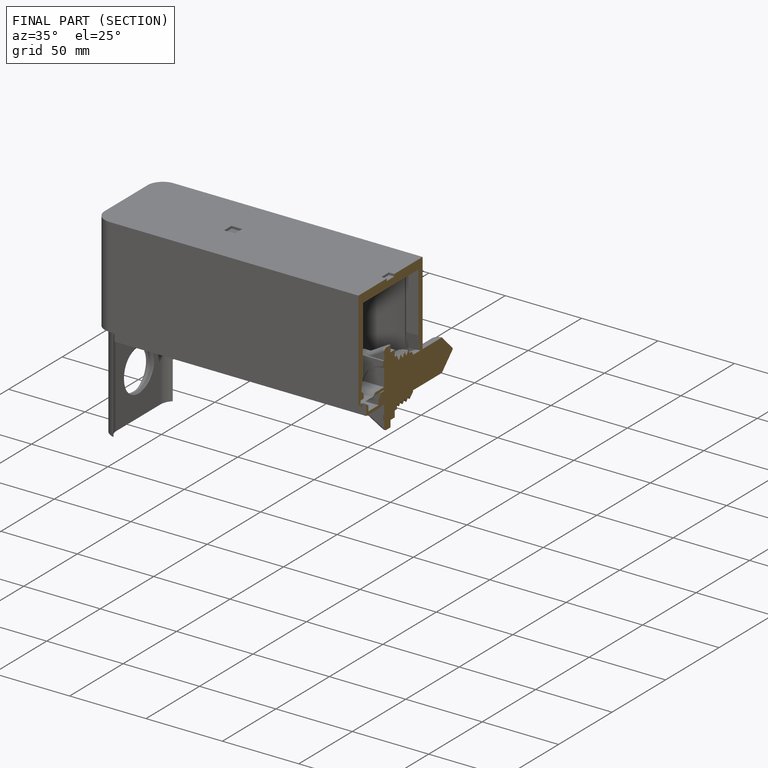
[diagram: finished part — half-section view (interior)]
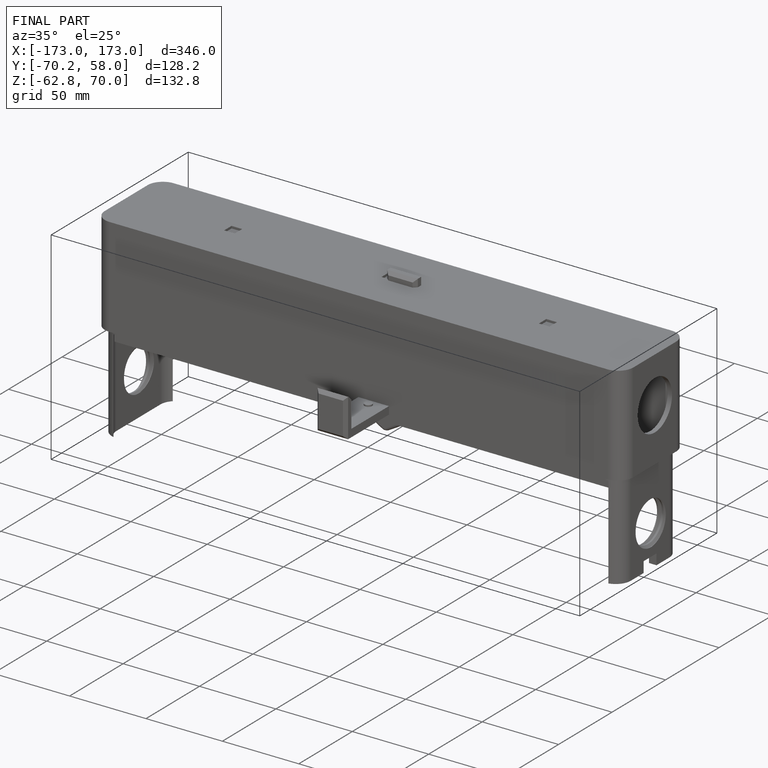
[diagram: finished part — iso view with bounding-box wireframe]
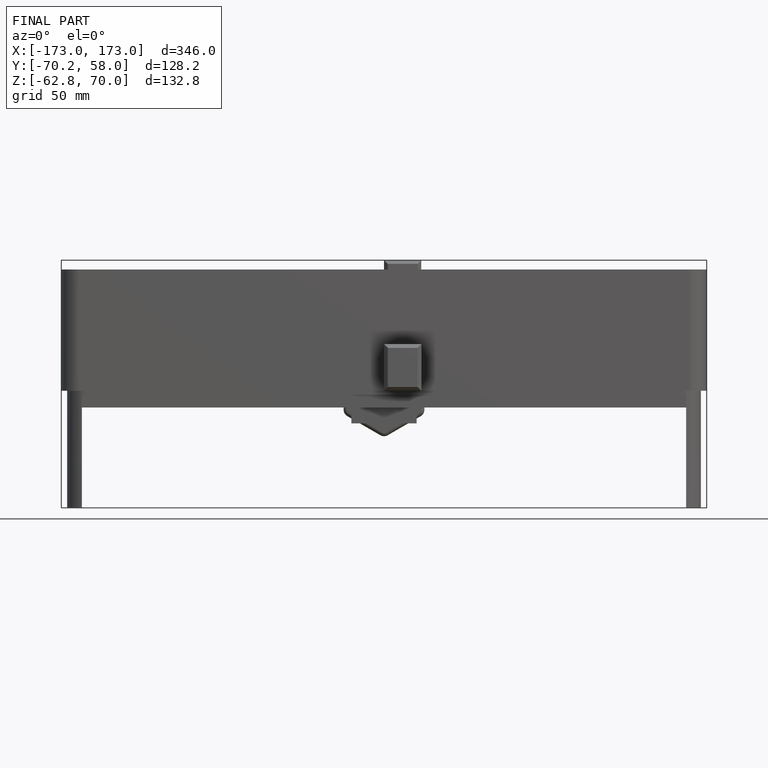
[diagram: finished part — front view with bounding-box wireframe]
